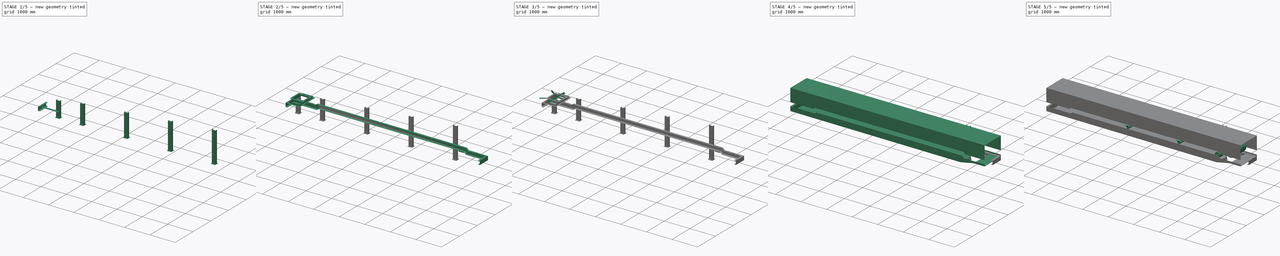
[diagram: build sequence overview — one tinted view per stage of 5, left to right]
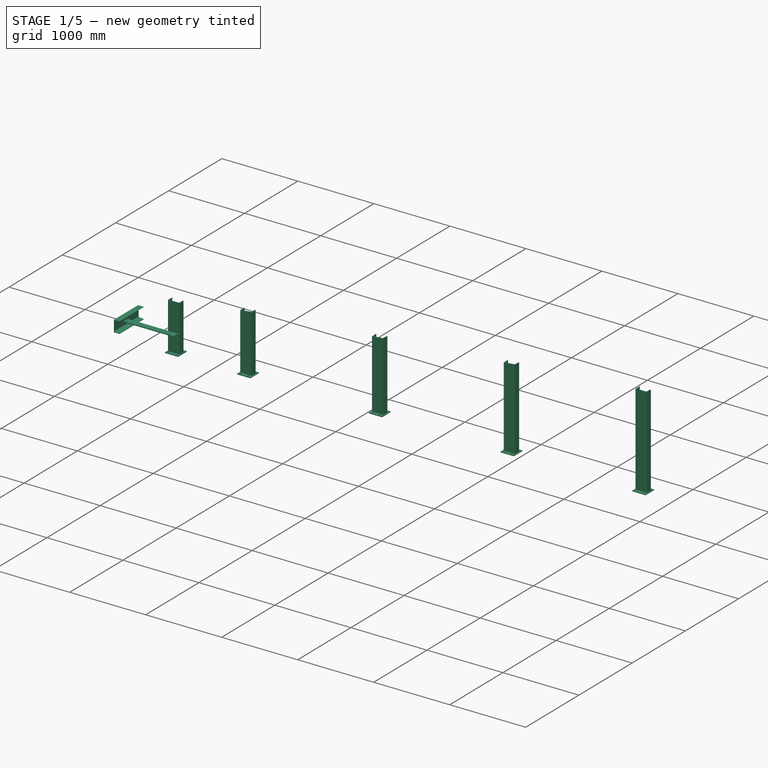
[diagram: stage 1 of 5 — iso view after this stage's code; geometry added in this stage tinted green]
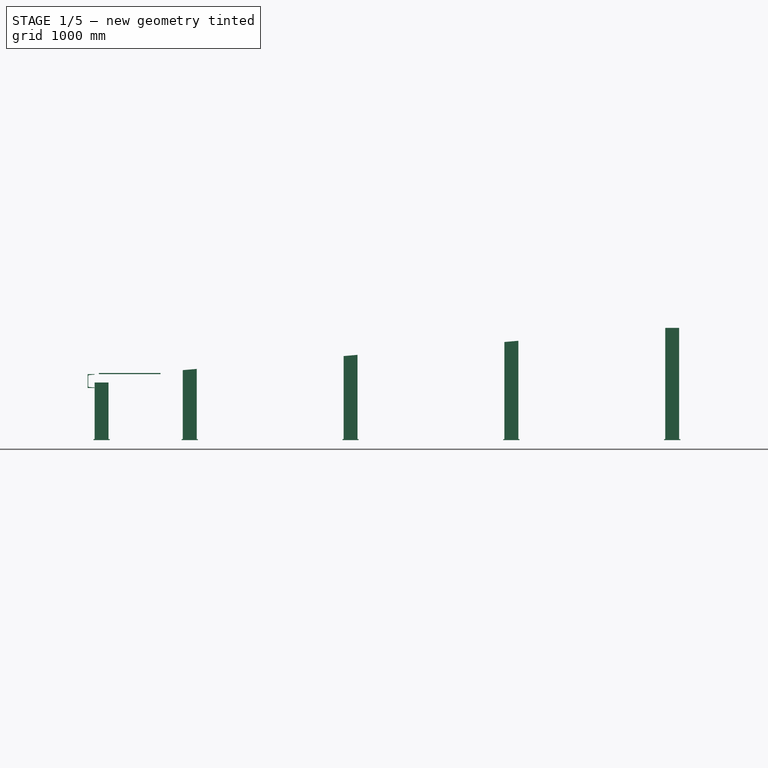
[diagram: stage 1 of 5 — front view after this stage's code; geometry added in this stage tinted green]
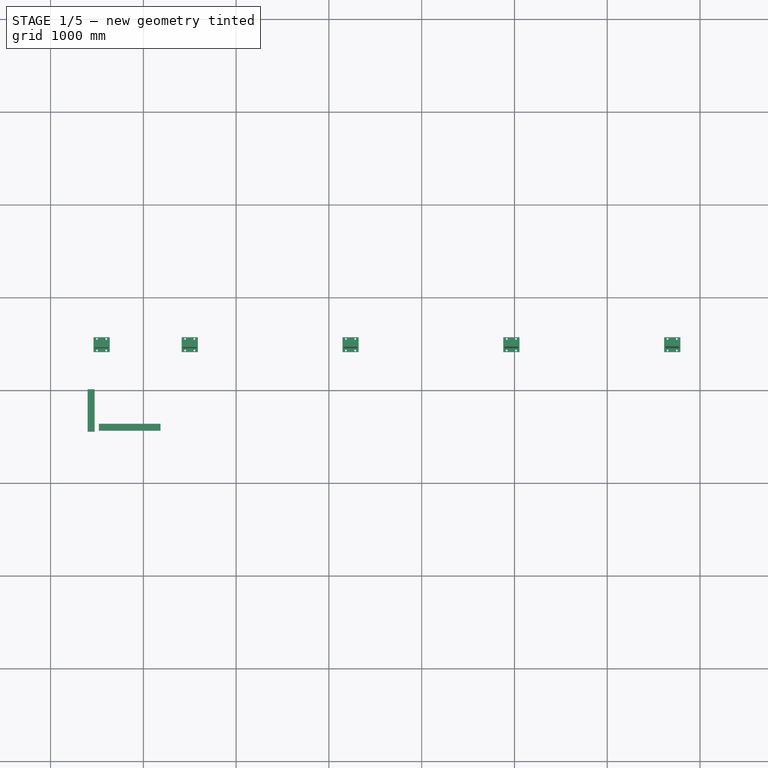
[diagram: stage 1 of 5 — top view after this stage's code; geometry added in this stage tinted green]
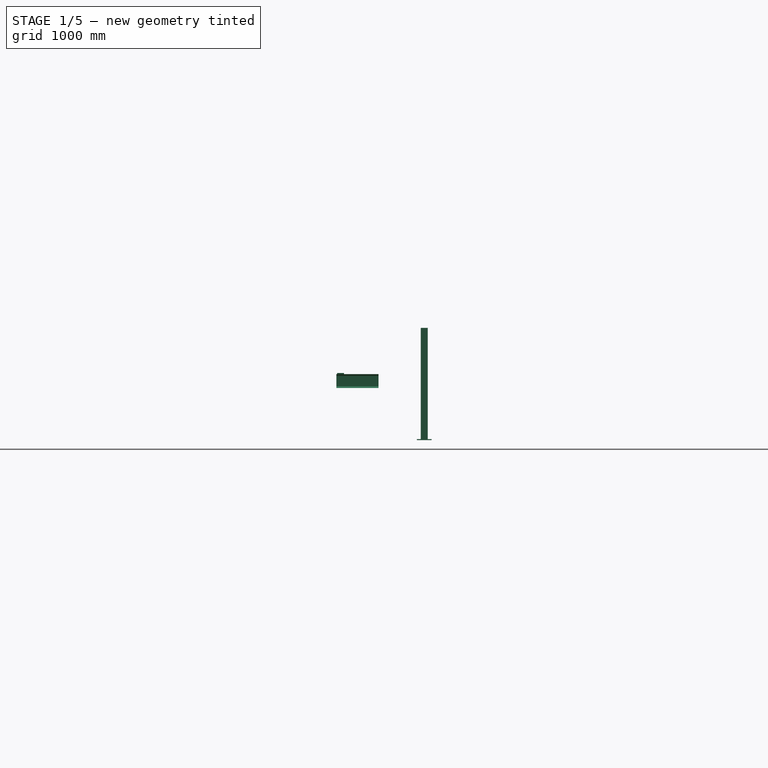
[diagram: stage 1 of 5 — right view after this stage's code; geometry added in this stage tinted green]
FCSTD DOCUMENT  (FreeCAD 1.0R39285 (Git))
Label: BeltCv600BAssy_M
License: All rights reserved
objects: Sketcher::SketchObject×40, App::Part×26, Part::FeaturePython×22, Part::Extrusion×20, Part::MultiFuse×12, PartDesign::Pad×12, Part::Feature×9, PartDesign::Body×9, Part::Cut×8, Part::Mirroring×7, Spreadsheet::Sheet×5, Part::Sweep×5, PartDesign::Pocket×5, PartDesign::LinearPattern×3, Part::Compound×2, PartDesign::Mirrored×2, PartDesign::Chamfer×1
note: 235 computed .brp shape members not serialized (recipe doc carries the construction recipe); baked Part::Feature solids carry a one-line shape summary decoded from their .brp

FEATURE [Part::FeaturePython] ChannelSteel004  # WARN: FeaturePython — macro-defined, semantics opaque (R4)
  B = 75
  H = 150
  L = 1000
  Placement = pos=(-600,0,-239) rot=(0,0,1;0rad)
  Solid = false
  g0 = 7.85
  mass = 0
  size = 3
  standard = SS
  t1 = 6.5
  t2 = 10
FEATURE [Part::Extrusion] Extrude036
  Base = -> ChannelSteel004
  Dir = (0,1,0)
  DirMode = 2
  FaceMakerClass = Part::FaceMakerBullseye
  FaceMakerMode = 3
  LengthFwd = 455
  LengthRev = 0
  Reversed = true
  Solid = false
  Symmetric = false
  expr: LengthFwd = Spreadsheet001.W0 / 2
FEATURE [Part::Extrusion] Extrude038
  Base = -> Sketch057
  Dir = (0,0,1)
  DirMode = 2
  FaceMakerClass = Part::FaceMakerBullseye
  FaceMakerMode = 3
  LengthFwd = 12
  LengthRev = 0
  Solid = true
  Symmetric = false
FEATURE [App::Part] Part028  label="Frame"
  Group = -> [Part026,Mirror007,Sketch007]
  Origin = -> Origin037
  Placement = pos=(0,0,200) rot=(0,0,1;0rad)
  expr: .Placement.Base.z = 1000 - Spreadsheet001.Ht
FEATURE [App::Part] Part017  label="body"
  Group = -> [Part015,Part014,Part013,Part011,Part010,Part025,Part028]
  Origin = -> Origin021
  Placement = pos=(0,0,-200) rot=(0,1,0;-0.087266rad)
  expr: .Placement.Base.z = Spreadsheet001.Ht - 1000
  expr: .Placement.Rotation.Angle = -Spreadsheet001.k
FEATURE [Part::FeaturePython] BasePlate004  # WARN: FeaturePython — macro-defined, semantics opaque (R4)
  B = 175
  D = 19
  H = 160
  b1 = 25
  h1 = 30
  sface = 0
FEATURE [Part::Extrusion] Extrude039
  Base = -> BasePlate004
  Dir = (0,0,1)
  DirMode = 2
  FaceMakerClass = Part::FaceMakerBullseye
  FaceMakerMode = 3
  LengthFwd = 10
  LengthRev = 0
  Solid = true
  Symmetric = false
FEATURE [Part::FeaturePython] Channel004  # WARN: FeaturePython — macro-defined, semantics opaque (R4)
  B = 75
  H = 150
  L = 620.63
  Solid = true
  g0 = 7.85
  mass = 10.4917
  size = 3
  standard = SS
  expr: L = str(Spreadsheet001.Ht - 140 - 450 * tan(Spreadsheet001.k))
FEATURE [Part::MultiFuse] Fusion019  label="PostC004"
  Placement = pos=(-450,-542.5,-800) rot=(0,0,-1;1.5708rad)
  Shapes = -> [Extrude039,Channel004]
  expr: .Placement.Base.z = -Spreadsheet001.Ht
FEATURE [Part::FeaturePython] BasePlate005  # WARN: FeaturePython — macro-defined, semantics opaque (R4)
  B = 175
  D = 19
  H = 160
  b1 = 25
  h1 = 30
  sface = 0
FEATURE [Part::FeaturePython] Channel005  # WARN: FeaturePython — macro-defined, semantics opaque (R4)
  B = 75
  H = 150
  L = 1208.69
  Solid = true
  g0 = 7.85
  mass = 20.4327
  size = 3
  standard = SS
  expr: L = str(Spreadsheet001.Ht - 90 + (Spreadsheet001.C0 - 1300 + 500) * tan(Spreadsheet001.k))
FEATURE [Part::Extrusion] Extrude040
  Base = -> BasePlate005
  Dir = (0,0,1)
  DirMode = 2
  FaceMakerClass = Part::FaceMakerBullseye
  FaceMakerMode = 3
  LengthFwd = 10
  LengthRev = 0
  Solid = true
  Symmetric = false
FEATURE [Part::MultiFuse] Fusion020  label="PostC005"
  Placement = pos=(500,-542.5,-800) rot=(0,0,-1;1.5708rad)
  Shapes = -> [Extrude040,Channel005]
  expr: .Placement.Base.z = -Spreadsheet001.Ht
FEATURE [Part::FeaturePython] BasePlate006  # WARN: FeaturePython — macro-defined, semantics opaque (R4)
  B = 175
  D = 19
  H = 160
  b1 = 25
  h1 = 30
  sface = 0
FEATURE [Part::FeaturePython] Channel006  # WARN: FeaturePython — macro-defined, semantics opaque (R4)
  B = 75
  H = 150
  L = 1251.18
  Solid = true
  g0 = 7.85
  mass = 21.151
  size = 3
  standard = SS
  expr: L = str(Spreadsheet001.Ht - 100 + (Spreadsheet001.C0 - 200) * tan(Spreadsheet001.k))
FEATURE [Part::Extrusion] Extrude041
  Base = -> BasePlate006
  Dir = (0,0,1)
  DirMode = 2
  FaceMakerClass = Part::FaceMakerBullseye
  FaceMakerMode = 3
  LengthFwd = 10
  LengthRev = 0
  Solid = true
  Symmetric = false
FEATURE [Part::MultiFuse] Fusion021  label="ヘッド部001"
  Placement = pos=(5700,-542.5,-800) rot=(0,0,-1;1.5708rad)
  Shapes = -> [Extrude041,Channel006]
  expr: .Placement.Base.x = Spreadsheet001.C0 - 800
  expr: .Placement.Base.z = -Spreadsheet001.Ht
FEATURE [Sketcher::SketchObject] Sketch059
  ArcFitTolerance = 0
  FullyConstrained = true
  MakeInternals = false
  Placement = pos=(0,0,0) rot=(1,0,0;1.5708rad)
  expr: Constraints[11] = -90 + 500 * tan(Spreadsheet001.k)
  expr: Constraints[8] = 180 - Spreadsheet001.k
  expr: Constraints[9] = Spreadsheet001.C0 - 1000
  sketch-geometry (4):
    g0: LineSegment StartX=425 StartY=-46.2557 StartZ=0 EndX=5925 EndY=434.932 EndZ=0
    g1: LineSegment StartX=5925 StartY=434.932 StartZ=0 EndX=5925 EndY=1434.93 EndZ=0
    g2: LineSegment StartX=5925 StartY=1434.93 StartZ=0 EndX=425 EndY=1434.93 EndZ=0
    g3: LineSegment StartX=425 StartY=1434.93 StartZ=0 EndX=425 EndY=-46.2557 EndZ=0
  constraints (12):
    c: Coincident(g0,g1)
    c: Vertical(g1)
    c: Coincident(g1,g2)
    c: Horizontal(g2)
    c: Coincident(g2,g3)
    c: Coincident(g3,g0)
    c: Vertical(g3)
    c: DistanceX(g-1,g0) = 425
    c: Angle(g0,g-1) = 3.05433
    c: DistanceX(g2,g2) = 5500
    c: DistanceY(g1,g1) = 1000
    c: DistanceY(g-1,g0) = -46.2557
FEATURE [Part::Extrusion] Extrude042
  Base = -> Sketch059
  Dir = (0,-1,2e-16)
  DirMode = 2
  FaceMakerClass = Part::FaceMakerBullseye
  FaceMakerMode = 3
  LengthFwd = 600
  LengthRev = 0
  Solid = true
  Symmetric = false
FEATURE [Part::FeaturePython] Array005  label="Array"  # Draft array (typed FeaturePython)
  Angle = 360
  ArrayType = 0
  Axis = (0,0,1)
  Base = -> Fusion020
  Center = (0,0,0)
  Count = 3
  Fuse = true
  IntervalAxis = (0,0,0)
  IntervalX = (1733.33,0,0)
  IntervalY = (0,100,0)
  IntervalZ = (0,0,100)
  NumberCircles = 3
  NumberPolar = 5
  NumberX = 3
  NumberY = 1
  NumberZ = 1
  RadialDistance = 50
  Symmetry = 1
  TangentialDistance = 25
  expr: .IntervalX.x = Spreadsheet001.post_x
  expr: NumberX = Spreadsheet001.post_c + 1
FEATURE [Part::MultiFuse] Fusion022  label="Fusion013"
  Placement = pos=(1733.33,0,0) rot=(0,0,1;0rad)
  Refine = true
  Shapes = -> [Array005,Fusion020]
  expr: .Placement.Base.x = Spreadsheet001.post_x
FEATURE [Part::Cut] Cut007
  Base = -> Fusion022
  Refine = true
  Tool = -> Extrude042
FEATURE [Part::Cut] Cut008
  Base = -> Fusion022
  Refine = true
  Tool = -> Extrude042
FEATURE [Part::Cut] Cut009
  Base = -> Fusion020
  Refine = true
  Tool = -> Extrude042
FEATURE [App::Part] Part029  label="post"
  Group = -> [BasePlate004,Channel004,Extrude039,Fusion019,BasePlate006,Channel006,Extrude041,Fusion021,BasePlate005,Channel005,Array005,Cut007,Fusion020,Fusion022,Cut008,Sketch059,Extrude040,Extrude042,Cut009]
  Origin = -> Origin038
  Placement = pos=(0,50,0) rot=(0,1,0;0rad)
FEATURE [Part::Mirroring] Mirror008  label="post (mirrored)"
  Base = (-1000,0,0)
  Normal = (0,-1,0)
  Source = -> Part029
FEATURE [App::Part] Part030  label="Post"
  Group = -> [Part029,Mirror008]
  Origin = -> Origin039
  Placement = pos=(0,0,-200) rot=(0,0,1;0rad)
  expr: .Placement.Base.z = Spreadsheet001.Ht - 1000
FEATURE [App::Part] Part003  label="600B_motorpulley"
  Group = -> [Spreadsheet001,Part017,Part030]
  Origin = -> Origin007
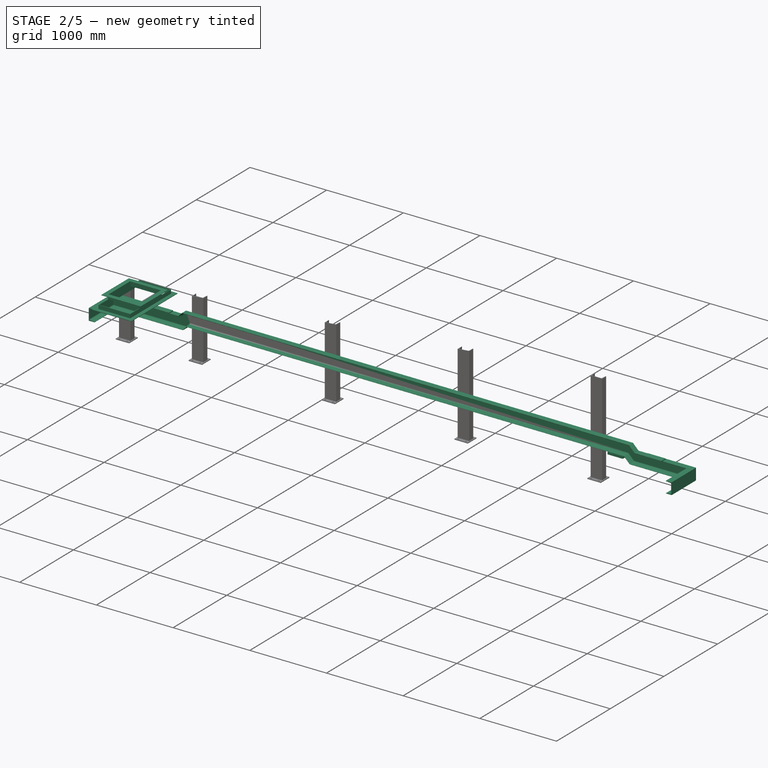
[diagram: stage 2 of 5 — iso view after this stage's code; geometry added in this stage tinted green]
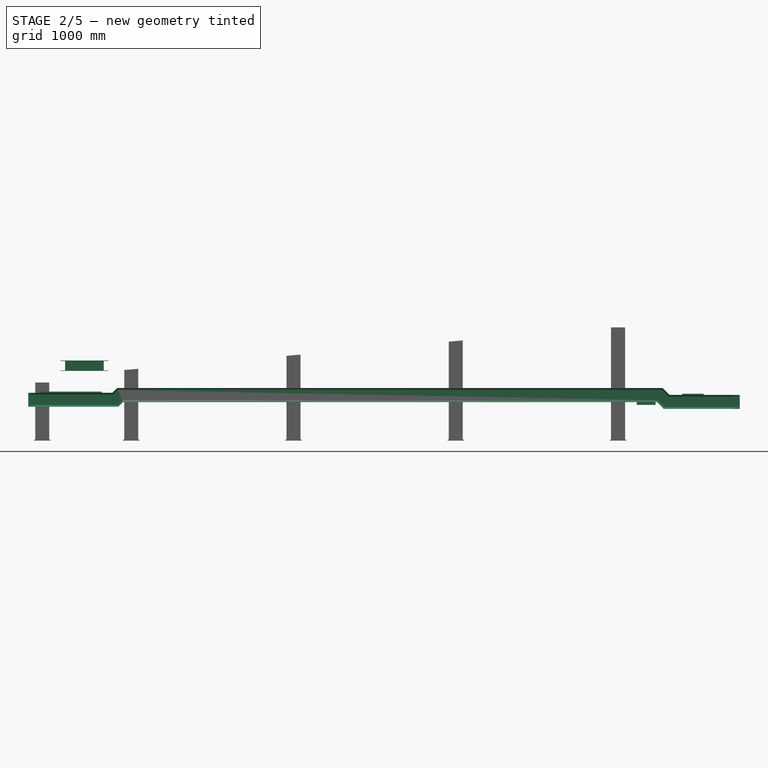
[diagram: stage 2 of 5 — front view after this stage's code; geometry added in this stage tinted green]
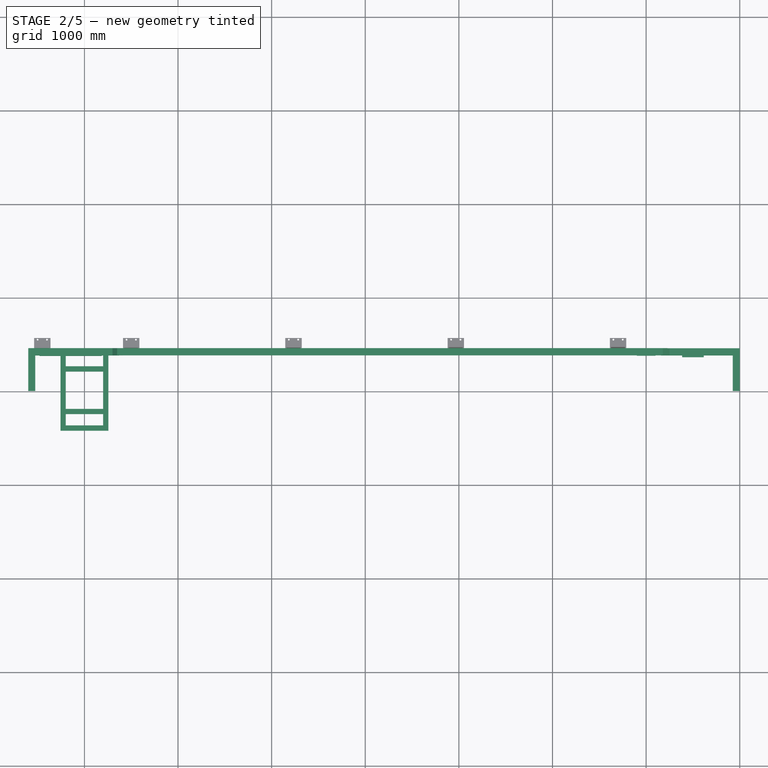
[diagram: stage 2 of 5 — top view after this stage's code; geometry added in this stage tinted green]
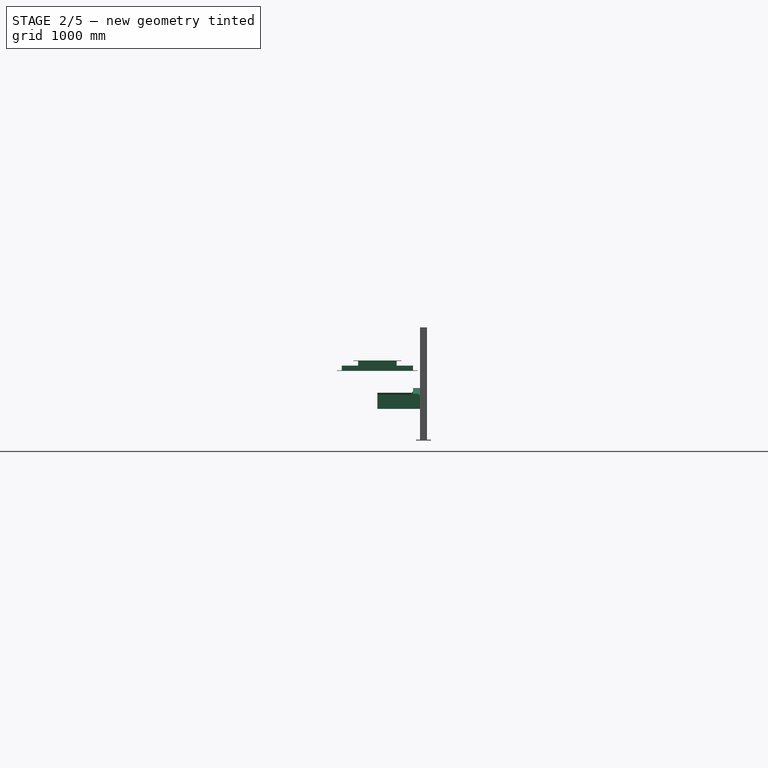
[diagram: stage 2 of 5 — right view after this stage's code; geometry added in this stage tinted green]
FEATURE [App::Part] Part024  label="suport"
  Group = -> [Clone,Body008,Compound,Clone002,Sketch050,AngleSteel001,Extrude033,Cut005]
  Origin = -> Origin033
  Placement = pos=(186.937,0,46.3537) rot=(0,0,1;0rad)
  expr: .Placement.Base.x = 215 * cos(Spreadsheet004.angle) - 27
  expr: .Placement.Base.z = 25 + 215 * sin(Spreadsheet004.angle)
FEATURE [Spreadsheet::Sheet] Spreadsheet004
  cells = A1='angle; B1(angle)=5.7
FEATURE [App::Part] Part025  label="scraper"
  Group = -> [Part020,Part021,Mirror,Part022,Fusion014,Part023,Part024,Spreadsheet004]
  Origin = -> Origin034
  Placement = pos=(656.4,0,-130.3) rot=(0,0,1;0rad)
FEATURE [Part::Feature] Self_Aligning_Carrier_600
  Placement = pos=(5500,-1.6014e-12,-36) rot=(0,0,1;1.5708rad)
  shape: bbox 308 x 890 x 416.2 mm, 193 faces, 4 solids (baked)
  expr: .Placement.Base.x = Spreadsheet001.C0 - 1000
FEATURE [App::Part] Part010  label="Pulleys"
  Group = -> [Array001,Array,Part006,Part004,CPM2_4145,Self_Aligning_Return_600,Self_Aligning_Carrier_600]
  Origin = -> Origin015
FEATURE [Sketcher::SketchObject] Sketch
  ArcFitTolerance = 1e-06
  AttachmentSupport = -> [XZ_Plane]
  FullyConstrained = true
  MakeInternals = false
  MapMode = 5
  Placement = pos=(0,0,0) rot=(1,0,0;1.5708rad)
  expr: Constraints[11] = Spreadsheet.h0 + 10
  expr: Constraints[8] = Spreadsheet.w0
  expr: Constraints[9] = Spreadsheet.sita0
  sketch-geometry (5):
    g0: LineSegment StartX=-200 StartY=0 StartZ=0 EndX=200 EndY=0 EndZ=0
    g1: LineSegment StartX=200 StartY=0 StartZ=0 EndX=200 EndY=60 EndZ=0
    g2: LineSegment StartX=200 StartY=60 StartZ=0 EndX=-200 EndY=60 EndZ=0
    g3: LineSegment StartX=-200 StartY=60 StartZ=0 EndX=-200 EndY=0 EndZ=0
    g4: GeomPoint X=-1.15e-14 Y=60 Z=0
  constraints (12):
    c: PointOnObject(g0,g-1)
    c: Coincident(g0,g1)
    c: Vertical(g1)
    c: Coincident(g1,g2)
    c: Coincident(g2,g3)
    c: Coincident(g3,g0)
    c: Vertical(g3)
    c: Symmetric(g0,g0,g-2)
    c: DistanceX(g0,g0) = 400
    c: Angle(g0,g2) = 0
    c: Symmetric(g2,g2,g4)
    c: DistanceY(g-1,g4) = 60
FEATURE [PartDesign::Pad] Pad
  Direction = (0,-1,2e-16)
  Length = 400
  Length2 = 10
  Midplane = true
  Placement = pos=(0,0,0) rot=(1,0,0;1.5708rad)
  Profile = -> Sketch
  ReferenceAxis = -> Sketch [N_Axis]
  Refine = true
  Suppressed = false
  Type = 0
  expr: Length = Spreadsheet.l0
FEATURE [PartDesign::Body] Body
  AllowCompound = false
  Group = -> [Sketch,Pad]
  Origin = -> Origin
  Tip = -> Pad
FEATURE [Sketcher::SketchObject] Sketch052
  ArcFitTolerance = 1e-06
  AttachmentSupport = -> [XZ_Plane001]
  FullyConstrained = true
  MakeInternals = false
  MapMode = 5
  Placement = pos=(0,0,0) rot=(1,0,0;1.5708rad)
  expr: .Constraints.sita = Spreadsheet.sita0
  expr: Constraints[11] = Spreadsheet.h0
  expr: Constraints[8] = Spreadsheet.w0 + Spreadsheet.t0 * 2
  sketch-geometry (5):
    g0: LineSegment StartX=-206 StartY=0 StartZ=0 EndX=206 EndY=0 EndZ=0
    g1: LineSegment StartX=206 StartY=0 StartZ=0 EndX=206 EndY=50 EndZ=0
    g2: LineSegment StartX=206 StartY=50 StartZ=0 EndX=-206 EndY=50 EndZ=0
    g3: LineSegment StartX=-206 StartY=50 StartZ=0 EndX=-206 EndY=0 EndZ=0
    g4: GeomPoint X=-6.2e-15 Y=50 Z=0
  constraints (12):
    c: PointOnObject(g0,g-1)
    c: Coincident(g0,g1)
    c: Vertical(g1)
    c: Coincident(g1,g2)
    c: Coincident(g2,g3)
    c: Coincident(g3,g0)
    c: Vertical(g3)
    c: Symmetric(g0,g0,g-2)
    c: DistanceX(g0,g0) = 412
    c: Angle(g0,g2) = 0  'sita'
    c: Symmetric(g2,g2,g4)
    c: DistanceY(g-1,g4) = 50
FEATURE [PartDesign::Pad] Pad001
  Direction = (0,-1,2e-16)
  Length = 412
  Length2 = 10
  Midplane = true
  Placement = pos=(0,0,0) rot=(1,0,0;1.5708rad)
  Profile = -> Sketch052
  ReferenceAxis = -> Sketch052 [N_Axis]
  Refine = true
  Suppressed = false
  Type = 0
  expr: Length = Spreadsheet.l0 + Spreadsheet.t0 * 2
FEATURE [Sketcher::SketchObject] Sketch053
  ArcFitTolerance = 1e-06
  AttachmentSupport = -> [Pad001]
  FullyConstrained = true
  MakeInternals = false
  MapMode = 5
  Placement = pos=(0,2.2e-14,50) rot=(0,0,1;3.14159rad)
  expr: .AttachmentOffset.Base.x = -<<shtInlet>>.h0 * sin(<<shtInlet>>.sita0) * cos(<<shtInlet>>.sita0)
  expr: Constraints[10] = Spreadsheet.w0 + Spreadsheet.t0 * 2 + Spreadsheet.b0 * 2
  expr: Constraints[11] = Spreadsheet.l0 + Spreadsheet.t0 * 2 + Spreadsheet.b0 * 2
  sketch-geometry (5):
    g0: LineSegment StartX=-256 StartY=-256 StartZ=0 EndX=256 EndY=-256 EndZ=0
    g1: LineSegment StartX=256 StartY=-256 StartZ=0 EndX=256 EndY=256 EndZ=0
    g2: LineSegment StartX=256 StartY=256 StartZ=0 EndX=-256 EndY=256 EndZ=0
    g3: LineSegment StartX=-256 StartY=256 StartZ=0 EndX=-256 EndY=-256 EndZ=0
    g4: GeomPoint [constr] X=-1.2e-15 Y=1.2e-15 Z=0
  constraints (12):
    c: Coincident(g0,g1)
    c: Coincident(g1,g2)
    c: Coincident(g2,g3)
    c: Coincident(g3,g0)
    c: Horizontal(g0)
    c: Horizontal(g2)
    c: Vertical(g1)
    c: Vertical(g3)
    c: Symmetric(g2,g0,g4)
    c: Coincident(g4,g-1)
    c: DistanceX(g2,g2) = 512
    c: DistanceY(g3,g3) = 512
FEATURE [PartDesign::Pad] Pad002
  BaseFeature = -> Pad001
  Direction = (0,0,1)
  Length = 6
  Length2 = 10
  Placement = pos=(0,0,0) rot=(1,0,0;1.5708rad)
  Profile = -> Sketch053
  ReferenceAxis = -> Sketch053 [N_Axis]
  Refine = true
  Suppressed = false
  Type = 0
FEATURE [PartDesign::Body] Body001
  AllowCompound = false
  Group = -> [Sketch052,Pad001,Sketch053,Pad002]
  Origin = -> Origin001
  Tip = -> Pad002
FEATURE [Part::Cut] Cut006
  Base = -> Body001
  Refine = true
  Tool = -> Body
FEATURE [Spreadsheet::Sheet] Spreadsheet  label="shtInlet"
  cells = A1='inlet; A2='w0; B2(w0)=400; A3='l0; B3(l0)=400; A4='t0; B4(t0)=6; A5='h0; B5(h0)=50; A6='b0; B6(b0)=50; A7='sita0; B7(sita0)=0
FEATURE [App::Part] Part  label="inlet"
  Group = -> [Spreadsheet,Body,Body001,Cut006]
  Origin = -> Origin002
  Placement = pos=(400,0,413.1) rot=(0,0,1;0rad)
FEATURE [App::Part] Part013  label="Cover"
  Group = -> [Sketch020,Sketch033,Extrude032,Extrude012,Cut003,Part]
  Origin = -> Origin018
FEATURE [Sketcher::SketchObject] Sketch054
  ArcFitTolerance = 1e-06
  AttachmentSupport = -> [XZ_Plane003]
  FullyConstrained = true
  MakeInternals = false
  MapMode = 5
  Placement = pos=(0,0,0) rot=(1,0,0;1.5708rad)
  expr: Constraints[11] = Spreadsheet005.h0 + 10
  expr: Constraints[8] = Spreadsheet005.w0
  expr: Constraints[9] = Spreadsheet005.sita0
  sketch-geometry (5):
    g0: LineSegment StartX=-200 StartY=0 StartZ=0 EndX=200 EndY=0 EndZ=0
    g1: LineSegment StartX=200 StartY=0 StartZ=0 EndX=200 EndY=60 EndZ=0
    g2: LineSegment StartX=200 StartY=60 StartZ=0 EndX=-200 EndY=60 EndZ=0
    g3: LineSegment StartX=-200 StartY=60 StartZ=0 EndX=-200 EndY=0 EndZ=0
    g4: GeomPoint X=6.5e-15 Y=60 Z=0
  constraints (12):
    c: PointOnObject(g0,g-1)
    c: Coincident(g0,g1)
    c: Vertical(g1)
    c: Coincident(g1,g2)
    c: Coincident(g2,g3)
    c: Coincident(g3,g0)
    c: Vertical(g3)
    c: Symmetric(g0,g0,g-2)
    c: DistanceX(g0,g0) = 400
    c: Angle(g0,g2) = 0
    c: Symmetric(g2,g2,g4)
    c: DistanceY(g-1,g4) = 60
FEATURE [PartDesign::Pad] Pad003
  Direction = (0,-1,2e-16)
  Length = 750
  Length2 = 10
  Midplane = true
  Placement = pos=(0,0,0) rot=(1,0,0;1.5708rad)
  Profile = -> Sketch054
  ReferenceAxis = -> Sketch054 [N_Axis]
  Refine = true
  Suppressed = false
  Type = 0
  expr: Length = Spreadsheet005.l0
FEATURE [PartDesign::Body] Body002
  AllowCompound = false
  Group = -> [Sketch054,Pad003]
  Origin = -> Origin003
  Tip = -> Pad003
FEATURE [Sketcher::SketchObject] Sketch004
  ArcFitTolerance = 1e-06
  AttachmentSupport = -> [XZ_Plane004]
  FullyConstrained = true
  MakeInternals = false
  MapMode = 5
  Placement = pos=(0,0,0) rot=(1,0,0;1.5708rad)
  expr: .Constraints.sita = Spreadsheet005.sita0
  expr: Constraints[11] = Spreadsheet005.h0
  expr: Constraints[8] = Spreadsheet005.w0 + Spreadsheet005.t0 * 2
  sketch-geometry (5):
    g0: LineSegment StartX=-206 StartY=0 StartZ=0 EndX=206 EndY=0 EndZ=0
    g1: LineSegment StartX=206 StartY=0 StartZ=0 EndX=206 EndY=50 EndZ=0
    g2: LineSegment StartX=206 StartY=50 StartZ=0 EndX=-206 EndY=50 EndZ=0
    g3: LineSegment StartX=-206 StartY=50 StartZ=0 EndX=-206 EndY=0 EndZ=0
    g4: GeomPoint X=-6.4e-15 Y=50 Z=0
  constraints (12):
    c: PointOnObject(g0,g-1)
    c: Coincident(g0,g1)
    c: Vertical(g1)
    c: Coincident(g1,g2)
    c: Coincident(g2,g3)
    c: Coincident(g3,g0)
    c: Vertical(g3)
    c: Symmetric(g0,g0,g-2)
    c: DistanceX(g0,g0) = 412
    c: Angle(g0,g2) = 0  'sita'
    c: Symmetric(g2,g2,g4)
    c: DistanceY(g-1,g4) = 50
FEATURE [PartDesign::Pad] Pad004
  Direction = (0,-1,2e-16)
  Length = 762
  Length2 = 10
  Midplane = true
  Placement = pos=(0,0,0) rot=(1,0,0;1.5708rad)
  Profile = -> Sketch004
  ReferenceAxis = -> Sketch004 [N_Axis]
  Refine = true
  Suppressed = false
  Type = 0
  expr: Length = Spreadsheet005.l0 + Spreadsheet005.t0 * 2
FEATURE [Sketcher::SketchObject] Sketch055
  ArcFitTolerance = 1e-06
  AttachmentSupport = -> [Pad004]
  FullyConstrained = true
  MakeInternals = false
  MapMode = 5
  Placement = pos=(0,2.2e-14,50) rot=(0,0,1;3.14159rad)
  expr: .AttachmentOffset.Base.x = -<<shtOutlet>>.h0 * sin(<<shtOutlet>>.sita0) * cos(<<shtOutlet>>.sita0)
  expr: Constraints[10] = (Spreadsheet005.w0 + Spreadsheet005.t0 * 2 + Spreadsheet005.b0 * 2) / cos(Spreadsheet005.sita0)
  expr: Constraints[11] = Spreadsheet005.l0 + Spreadsheet005.t0 * 2 + Spreadsheet005.b0 * 2
  sketch-geometry (5):
    g0: LineSegment StartX=-256 StartY=-431 StartZ=0 EndX=256 EndY=-431 EndZ=0
    g1: LineSegment StartX=256 StartY=-431 StartZ=0 EndX=256 EndY=431 EndZ=0
    g2: LineSegment StartX=256 StartY=431 StartZ=0 EndX=-256 EndY=431 EndZ=0
    g3: LineSegment StartX=-256 StartY=431 StartZ=0 EndX=-256 EndY=-431 EndZ=0
    g4: GeomPoint [constr] X=-9e-16 Y=-8.3e-15 Z=0
  constraints (12):
    c: Coincident(g0,g1)
    c: Coincident(g1,g2)
    c: Coincident(g2,g3)
    c: Coincident(g3,g0)
    c: Horizontal(g0)
    c: Horizontal(g2)
    c: Vertical(g1)
    c: Vertical(g3)
    c: Symmetric(g2,g0,g4)
    c: Coincident(g4,g-1)
    c: DistanceX(g2,g2) = 512
    c: DistanceY(g3,g3) = 862
FEATURE [PartDesign::Pad] Pad005
  BaseFeature = -> Pad004
  Direction = (0,0,1)
  Length = 6
  Length2 = 10
  Placement = pos=(0,0,0) rot=(1,0,0;1.5708rad)
  Profile = -> Sketch055
  ReferenceAxis = -> Sketch055 [N_Axis]
  Refine = true
  Suppressed = false
  Type = 0
FEATURE [PartDesign::Body] Body003
  AllowCompound = false
  Group = -> [Sketch004,Pad004,Sketch055,Pad005]
  Origin = -> Origin004
  Tip = -> Pad005
FEATURE [Part::Cut] Cut001
  Base = -> Body003
  Placement = pos=(0,0,0) rot=(0,1,0;3.14159rad)
  Refine = true
  Tool = -> Body002
FEATURE [Spreadsheet::Sheet] Spreadsheet005  label="shtOutlet"
  cells = A1='outlet; A2='w0; B2(w0)=400; A3='l0; B3(l0)=750; A4='t0; B4(t0)=6; A5='h0; B5(h0)=50; A6='b0; B6(b0)=50; A7='sita0; B7(sita0)=0
FEATURE [App::Part] Part001  label="outlet"
  Group = -> [Spreadsheet005,Body002,Body003,Cut001]
  Origin = -> Origin005
  Placement = pos=(6790,0,-337.3) rot=(0,0,1;0rad)
  expr: .Placement.Base.x = Spreadsheet001.C0 + 290
FEATURE [App::Part] Part014  label="waterReceptacle"
  Group = -> [Single_flange_straight_pipe,Fusion009,Single_flange_straight_pipe001,Sketch023,Sketch032,Extrude031,Extrude015,Cut,Part001]
  Origin = -> Origin019
FEATURE [Sketcher::SketchObject] Sketch007
  ArcFitTolerance = 0
  FullyConstrained = true
  MakeInternals = false
  MapMode = 5
  Placement = pos=(0,0,14) rot=(1,0,0;1.5708rad)
  expr: Constraints[11] = Spreadsheet001.C0 + 1200
  expr: Constraints[14] = Spreadsheet001.h1
  expr: Constraints[15] = Spreadsheet001.h2
  sketch-geometry (5):
    g0: LineSegment StartX=-600 StartY=-99 StartZ=0 EndX=250 EndY=-99 EndZ=0
    g1: LineSegment StartX=250 StartY=-99 StartZ=0 EndX=300 EndY=-49 EndZ=0
    g2: LineSegment StartX=300 StartY=-49 StartZ=0 EndX=6427 EndY=-49 EndZ=0
    g3: LineSegment StartX=6427 StartY=-49 StartZ=0 EndX=6500 EndY=-122 EndZ=0
    g4: LineSegment StartX=6500 StartY=-122 StartZ=0 EndX=7700 EndY=-122 EndZ=0
  constraints (16):
    c: Horizontal(g0)
    c: Coincident(g0,g1)
    c: Coincident(g1,g2)
    c: Horizontal(g2)
    c: Coincident(g2,g3)
    c: Coincident(g3,g4)
    c: Horizontal(g4)
    c: DistanceX(g0,g-1) = 600
    c: Angle(g1,g0) = 2.35619
    c: DistanceX(g-1,g0) = 250
    c: Angle(g4,g3) = 2.35619
    c: DistanceX(g-1,g4) = 7700
    c: DistanceX(g4,g4) = 1200
    c: DistanceY(g0,g-1) = 99
    c: DistanceY(g0,g1) = 50
    c: DistanceY(g3,g3) = 73
FEATURE [Part::Feature] ChannelSteel003
  Placement = pos=(-600,-2.2e-14,-239) rot=(0,0,1;0rad)
  shape: bbox 2e-07 x 75 x 150 mm, 0 faces, 0 solids (baked)
FEATURE [Sketcher::SketchObject] Sketch056
  ArcFitTolerance = 0
  FullyConstrained = true
  MakeInternals = false
  MapMode = 5
  Placement = pos=(0,0,0) rot=(1,0,0;1.5708rad)
  expr: Constraints[13] = Spreadsheet001.C0
  expr: Constraints[16] = Spreadsheet001.h1
  expr: Constraints[18] = Spreadsheet001.h2
  sketch-geometry (6):
    g0: LineSegment StartX=-600 StartY=-89 StartZ=0 EndX=300 EndY=-89 EndZ=0
    g1: LineSegment StartX=300 StartY=-89 StartZ=0 EndX=350 EndY=-39 EndZ=0
    g2: LineSegment StartX=350 StartY=-39 StartZ=0 EndX=6177 EndY=-39 EndZ=0
    g3: LineSegment StartX=6177 StartY=-39 StartZ=0 EndX=6250 EndY=-112 EndZ=0
    g4: LineSegment StartX=6250 StartY=-112 StartZ=0 EndX=7000 EndY=-112 EndZ=0
    g5: LineSegment [constr] StartX=0 StartY=0 StartZ=0 EndX=6500 EndY=0 EndZ=0
  constraints (19):
    c: Horizontal(g0)
    c: Coincident(g0,g1)
    c: Coincident(g1,g2)
    c: Horizontal(g2)
    c: Coincident(g2,g3)
    c: Coincident(g3,g4)
    c: Horizontal(g4)
    c: DistanceX(g0,g-1) = 600
    c: DistanceX(g-1,g0) = 300
    c: Angle(g1,g0) = 2.35619
    c: Angle(g4,g3) = 2.35619
    c: PointOnObject(g5,g-1)
    c: Coincident(g5,g-1)
    c: DistanceX(g5,g5) = 6500
    c: DistanceX(g5,g4) = 500
    c: DistanceX(g3,g5) = 250
    c: DistanceY(g0,g1) = 50
    c: DistanceY(g-1,g0) = -89
    c: DistanceY(g3,g3) = 73
FEATURE [Part::Sweep] Sweep005
  Frenet = false
  Placement = pos=(0,-455,0) rot=(0,0,1;0rad)
  Sections = -> [ChannelSteel003]
  Solid = true
  Spine = -> Sketch056 [Edge1,Edge2,Edge3,Edge4,Edge5]
  Transition = 1
  expr: .Placement.Base.y = -Spreadsheet001.W0 / 2
FEATURE [Sketcher::SketchObject] Sketch057
  ArcFitTolerance = 0
  AttachmentSupport = -> [Sweep005]
  FullyConstrained = true
  MakeInternals = false
  MapMode = 5
  Placement = pos=(0,-455,-89) rot=(0,0,1;0rad)
  sketch-geometry (4):
    g0: LineSegment StartX=-480 StartY=8 StartZ=0 EndX=185 EndY=8 EndZ=0
    g1: LineSegment StartX=185 StartY=8 StartZ=0 EndX=185 EndY=83 EndZ=0
    g2: LineSegment StartX=185 StartY=83 StartZ=0 EndX=-480 EndY=83 EndZ=0
    g3: LineSegment StartX=-480 StartY=83 StartZ=0 EndX=-480 EndY=8 EndZ=0
  constraints (12):
    c: Coincident(g0,g1)
    c: Coincident(g1,g2)
    c: Coincident(g2,g3)
    c: Coincident(g3,g0)
    c: Horizontal(g0)
    c: Horizontal(g2)
    c: Vertical(g1)
    c: Vertical(g3)
    c: DistanceY(g1,g1) = 75
    c: DistanceY(g-1,g0) = 8
    c: DistanceX(g-1,g0) = 185
    c: DistanceX(g0,g0) = 665
FEATURE [Sketcher::SketchObject] Sketch058
  ArcFitTolerance = 0
  AttachmentSupport = -> [Sweep005]
  FullyConstrained = false
  MakeInternals = false
  MapMode = 5
  Placement = pos=(0,-455,-112) rot=(0,0,1;0rad)
  expr: Constraints[9] = Spreadsheet001.C0
  sketch-geometry (5):
    g0: LineSegment StartX=6385 StartY=16.2326 StartZ=0 EndX=6615 EndY=16.2326 EndZ=0
    g1: LineSegment StartX=6615 StartY=16.2326 StartZ=0 EndX=6615 EndY=96.2326 EndZ=0
    g2: LineSegment StartX=6615 StartY=96.2326 StartZ=0 EndX=6385 EndY=96.2326 EndZ=0
    g3: LineSegment StartX=6385 StartY=96.2326 StartZ=0 EndX=6385 EndY=16.2326 EndZ=0
    g4: LineSegment [constr] StartX=6500 StartY=284.577 StartZ=0 EndX=6500 EndY=-153.677 EndZ=0
  constraints (13):
    c: Coincident(g0,g1)
    c: Coincident(g1,g2)
    c: Coincident(g2,g3)
    c: Coincident(g3,g0)
    c: Horizontal(g0)
    c: Horizontal(g2)
    c: Vertical(g1)
    c: Vertical(g3)
    c: Vertical(g4)
    c: DistanceX(g-2,g4) = 6500
    c: DistanceY(g1,g1) = 80
    c: DistanceX(g0,g0) = 230
    c: DistanceX(g4,g0) = 115
FEATURE [Part::Extrusion] Extrude035
  Base = -> Sketch058
  Dir = (0,0,1)
  DirMode = 2
  FaceMakerClass = Part::FaceMakerBullseye
  FaceMakerMode = 3
  LengthFwd = 12
  LengthRev = 0
  Solid = true
  Symmetric = false
FEATURE [Sketcher::SketchObject] Sketch014
  ArcFitTolerance = 0
  AttachmentSupport = -> [Sweep005]
  FullyConstrained = false
  MakeInternals = false
  MapMode = 5
  Placement = pos=(0,-455,-189) rot=(1,0,0;3.14159rad)
  expr: Constraints[13] = Spreadsheet001.C0 - 500
  sketch-geometry (5):
    g0: LineSegment StartX=5900 StartY=-9 StartZ=0 EndX=6100 EndY=-9 EndZ=0
    g1: LineSegment StartX=6100 StartY=-9 StartZ=0 EndX=6100 EndY=-79 EndZ=0
    g2: LineSegment StartX=6100 StartY=-79 StartZ=0 EndX=5900 EndY=-79 EndZ=0
    g3: LineSegment StartX=5900 StartY=-79 StartZ=0 EndX=5900 EndY=-9 EndZ=0
    g4: LineSegment [constr] StartX=6000 StartY=33.7597 StartZ=0 EndX=6000 EndY=-194.785 EndZ=0
  constraints (14):
    c: Coincident(g0,g1)
    c: Coincident(g1,g2)
    c: Coincident(g2,g3)
    c: Coincident(g3,g0)
    c: Horizontal(g0)
    c: Horizontal(g2)
    c: Vertical(g1)
    c: Vertical(g3)
    c: Vertical(g4)
    c: DistanceX(g0,g0) = 200
    c: DistanceY(g3,g3) = 70
    c: DistanceX(g4,g0) = 100
    c: DistanceY(g-1,g0) = -9
    c: DistanceX(g-1,g4) = 6000
FEATURE [Part::Extrusion] Extrude005
  Base = -> Sketch014
  Dir = (0,0,-1)
  DirMode = 2
  FaceMakerClass = Part::FaceMakerBullseye
  FaceMakerMode = 3
  LengthFwd = 30
  LengthRev = 0
  Solid = true
  Symmetric = false
FEATURE [Part::FeaturePython] ChannelSteel005  # WARN: FeaturePython — macro-defined, semantics opaque (R4)
  B = 75
  H = 150
  L = 1000
  Placement = pos=(7000,0,-112) rot=(0,1,0;3.14159rad)
  Solid = false
  g0 = 7.85
  mass = 0
  size = 3
  standard = SS
  t1 = 6.5
  t2 = 10
  expr: .Placement.Base.x = Spreadsheet001.C0 + 500
FEATURE [Part::Extrusion] Extrude037
  Base = -> ChannelSteel005
  Dir = (0,1,0)
  DirMode = 2
  FaceMakerClass = Part::FaceMakerBullseye
  FaceMakerMode = 3
  LengthFwd = 455
  LengthRev = 0
  Reversed = true
  Solid = false
  Symmetric = false
  expr: LengthFwd = Spreadsheet001.W0 / 2
FEATURE [Part::MultiFuse] Fusion016
  Refine = true
  Shapes = -> [Sweep005,Extrude036]
FEATURE [Part::MultiFuse] Fusion017
  Refine = true
  Shapes = -> [Fusion016,Extrude038]
FEATURE [Part::MultiFuse] Fusion018
  Refine = true
  Shapes = -> [Fusion017,Extrude037]
FEATURE [Part::MultiFuse] Fusion003
  Shapes = -> [Fusion018,Extrude035]
FEATURE [Part::MultiFuse] Fusion004
  Placement = pos=(0,0,-200) rot=(0,1,0;0rad)
  Refine = true
  Shapes = -> [Fusion003,Extrude005]
  expr: .Placement.Base.z = Spreadsheet001.Ht - 1000
FEATURE [App::Part] Part026  label="本体001"
  Group = -> [Fusion016,ChannelSteel005,ChannelSteel004,ChannelSteel003,Sweep005,Sketch056,Sketch057,Extrude005,Extrude036,Extrude038,Extrude037,Extrude035,Sketch058,Sketch014,Fusion018,Fusion003,Fusion017,Fusion004]
  Origin = -> Origin035
FEATURE [Part::Mirroring] Mirror007  label="本体 (mirrored)001"
  Base = (-1000,0,0)
  Normal = (0,-1,0)
  Source = -> Part026
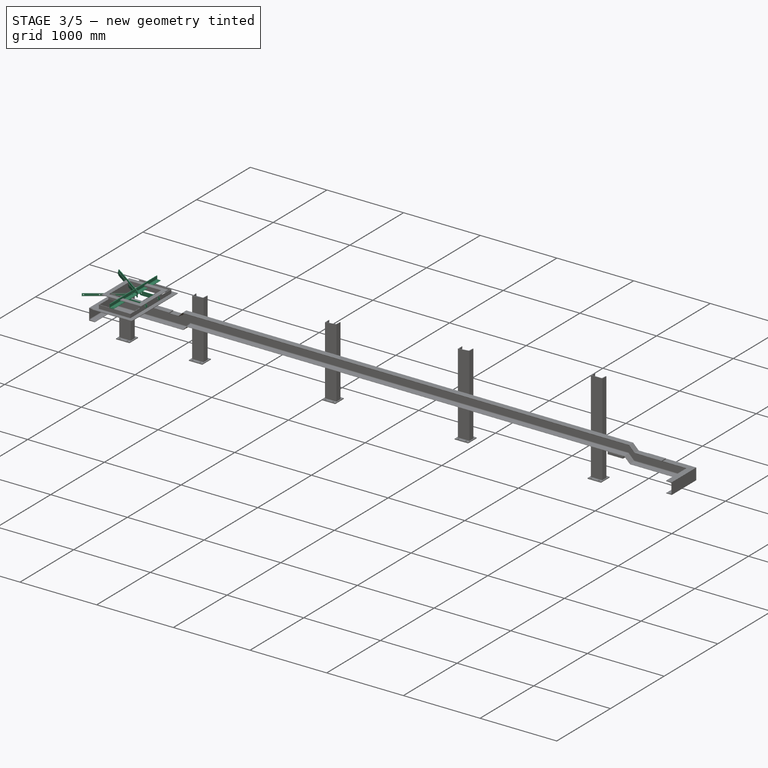
[diagram: stage 3 of 5 — iso view after this stage's code; geometry added in this stage tinted green]
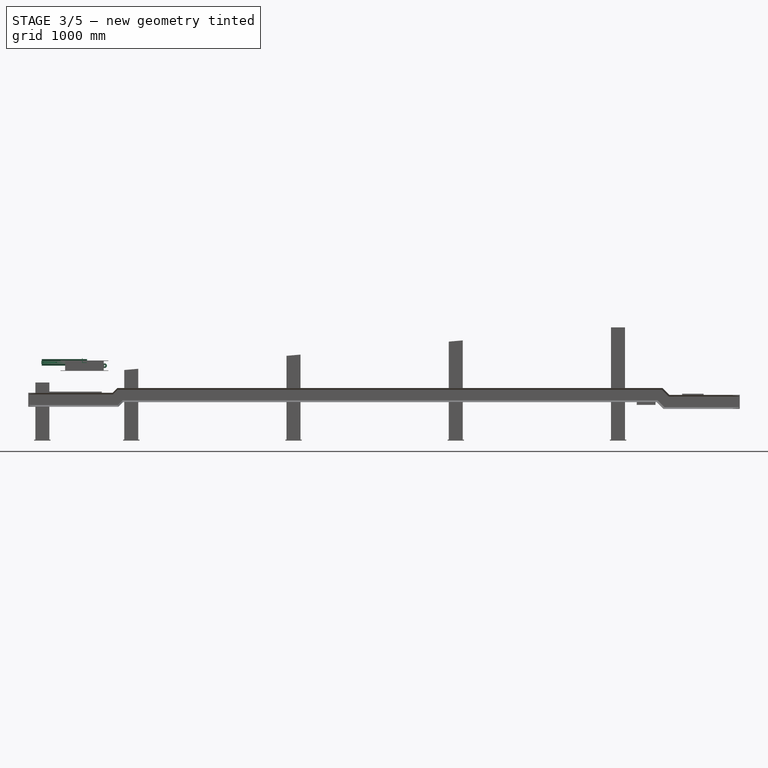
[diagram: stage 3 of 5 — front view after this stage's code; geometry added in this stage tinted green]
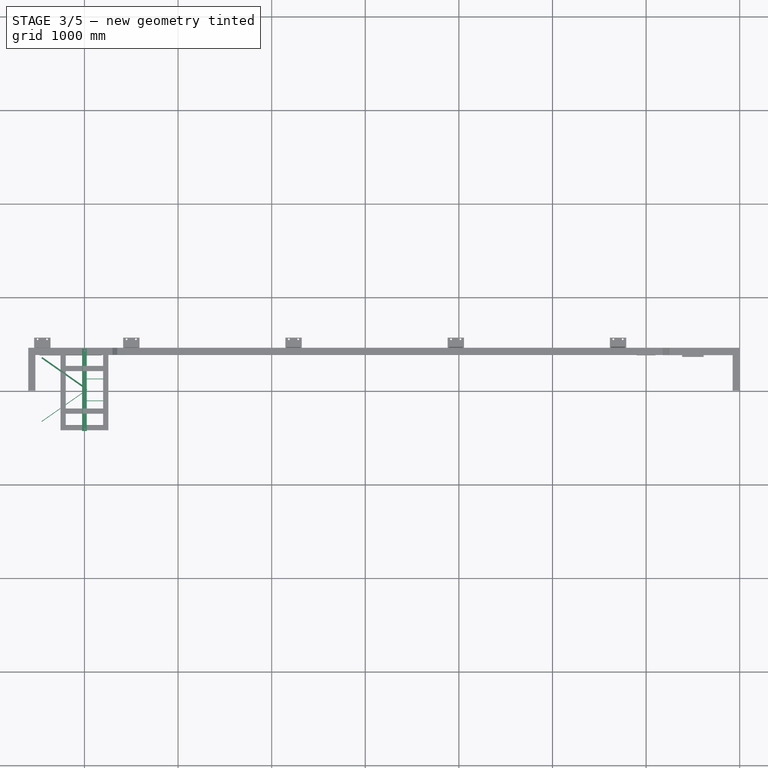
[diagram: stage 3 of 5 — top view after this stage's code; geometry added in this stage tinted green]
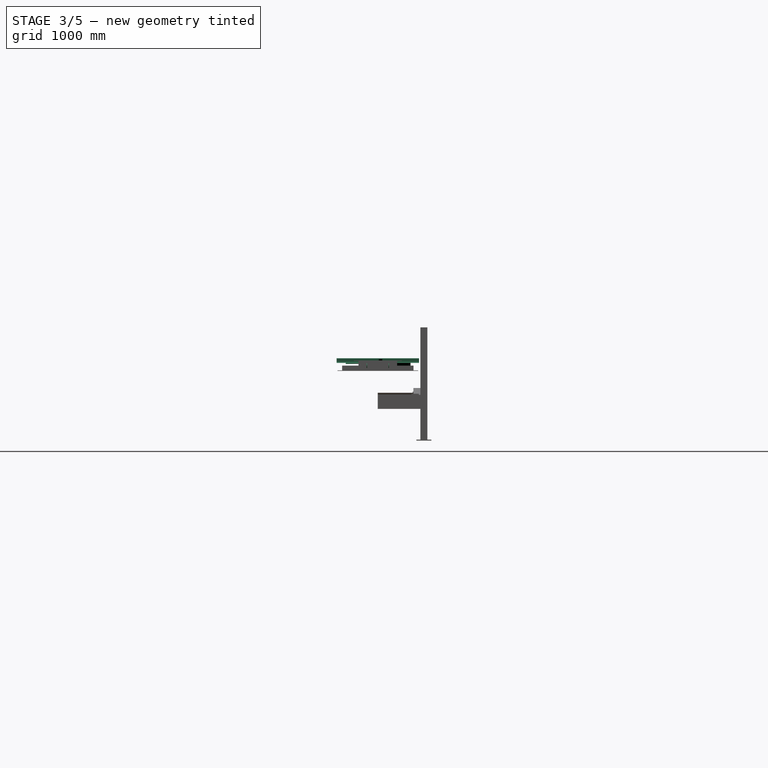
[diagram: stage 3 of 5 — right view after this stage's code; geometry added in this stage tinted green]
FEATURE [PartDesign::Body] Body004
  AllowCompound = false
  Group = -> [Sketch040,Pad006,Sketch041,Pad007,Chamfer,Sketch042,Pocket,Sketch043,Pocket001,LinearPattern,Mirrored]
  Origin = -> Origin024
  Tip = -> Mirrored
FEATURE [App::Part] Part020  label="scraperBody"
  Group = -> [Body004]
  Origin = -> Origin025
FEATURE [Sketcher::SketchObject] Sketch044
  ArcFitTolerance = 1e-06
  AttachmentSupport = -> [XY_Plane026]
  FullyConstrained = true
  MakeInternals = false
  MapMode = 5
  sketch-geometry (6):
    g0: LineSegment StartX=-451.035 StartY=350 StartZ=0 EndX=16.0601 EndY=22.9363 EndZ=0
    g1: ArcOfCircle CenterX=0 CenterY=0 CenterZ=0 NormalX=0 NormalY=0 NormalZ=1 AngleXU=0 Radius=28 StartAngle=0 EndAngle=0.959931
    g2: ArcOfCircle CenterX=0 CenterY=0 CenterZ=0 NormalX=0 NormalY=0 NormalZ=1 AngleXU=0 Radius=18 StartAngle=0 EndAngle=0.959931
    g3: LineSegment StartX=10.3244 StartY=14.7447 StartZ=0 EndX=-456.771 EndY=341.808 EndZ=0
    g4: LineSegment StartX=-456.771 StartY=341.808 StartZ=0 EndX=-451.035 EndY=350 EndZ=0
    g5: LineSegment StartX=18 StartY=0 StartZ=0 EndX=28 EndY=0 EndZ=0
  constraints (17):
    c: Tangent(g0,g1) = 1.5708
    c: Coincident(g3,g4)
    c: Coincident(g4,g0)
    c: Coincident(g2,g1)
    c: Coincident(g2,g-1)
    c: Tangent(g2,g3) = -1.5708
    c: Perpendicular(g4,g3)
    c: Parallel(g0,g3)
    c: Radius(g1) = 28
    c: Horizontal(g5)
    c: PointOnObject(g5,g-1)
    c: Coincident(g1,g5)
    c: Coincident(g2,g5)
    c: Angle(g3,g-1) = 0.610865
    c: Distance(g4,g4) = 10
    c: DistanceY(g-1,g0) = 350
    c: DistanceX(g3,g-1) = 456.771  'L'
FEATURE [PartDesign::Pad] Pad008
  Direction = (0,0,1)
  Length = 70
  Length2 = 10
  Profile = -> Sketch044
  ReferenceAxis = -> Sketch044 [N_Axis]
  Refine = true
  Suppressed = false
  Type = 0
FEATURE [Sketcher::SketchObject] Sketch006
  ArcFitTolerance = 1e-06
  FullyConstrained = false
  MakeInternals = false
  MapMode = 5
  Placement = pos=(0,126.75,0) rot=(0,0.707107,0.707107;3.14159rad)
  sketch-geometry (1):
    g0: Circle CenterX=26.7406 CenterY=25.2413 CenterZ=0 NormalX=0 NormalY=0 NormalZ=1 AngleXU=0 Radius=6
  constraints (2):
    c: Diameter(g0) = 12
    c: Distance(g0,g-3) = 25
FEATURE [PartDesign::Pocket] Pocket002
  BaseFeature = -> Pad008
  Direction = (0,-1,2e-16)
  Length = 30
  Length2 = 5
  Profile = -> Sketch006
  ReferenceAxis = -> Sketch006 [N_Axis]
  Refine = true
  Suppressed = false
  Type = 0
FEATURE [Sketcher::SketchObject] Sketch045
  ArcFitTolerance = 1e-06
  AttachmentSupport = -> [Pocket002]
  FullyConstrained = true
  MakeInternals = false
  MapMode = 5
  Placement = pos=(10.3244,14.7447,0) rot=(0.913318,-0.287968,-0.287968;1.66134rad)
  sketch-geometry (1):
    g0: Circle CenterX=-550.218 CenterY=45 CenterZ=0 NormalX=0 NormalY=0 NormalZ=1 AngleXU=0 Radius=6
  constraints (3):
    c: DistanceY(g-1,g0) = 45
    c: Diameter(g0) = 12
    c: Distance(g0,g-3) = 20
FEATURE [PartDesign::Pocket] Pocket003
  BaseFeature = -> Pocket002
  Direction = (0.573576,0.819152,3e-16)
  Length = 5
  Length2 = 5
  Profile = -> Sketch045
  ReferenceAxis = -> Sketch045 [N_Axis]
  Refine = true
  Suppressed = false
  Type = 1
FEATURE [PartDesign::Body] Body005
  AllowCompound = false
  Group = -> [Sketch044,Pad008,Sketch006,Pocket002,Sketch045,Pocket003,LinearPattern001,Mirrored001]
  Origin = -> Origin026
  Placement = pos=(0,0,-20) rot=(0,0,1;0rad)
  Tip = -> Mirrored001
FEATURE [App::Part] Part021  label="rubberSheet"
  Group = -> [Body005]
  Origin = -> Origin027
FEATURE [Sketcher::SketchObject] Sketch046
  ArcFitTolerance = 1e-06
  AttachmentSupport = -> [XY_Plane029]
  FullyConstrained = true
  MakeInternals = false
  MapMode = 5
  sketch-geometry (4):
    g0: LineSegment StartX=0 StartY=0 StartZ=0 EndX=550 EndY=0 EndZ=0
    g1: LineSegment StartX=550 StartY=0 StartZ=0 EndX=550 EndY=6 EndZ=0
    g2: LineSegment StartX=550 StartY=6 StartZ=0 EndX=0 EndY=6 EndZ=0
    g3: LineSegment StartX=0 StartY=6 StartZ=0 EndX=0 EndY=0 EndZ=0
  constraints (11):
    c: Coincident(g0,g1)
    c: Coincident(g1,g2)
    c: Coincident(g2,g3)
    c: Coincident(g3,g0)
    c: Horizontal(g0)
    c: Horizontal(g2)
    c: Vertical(g1)
    c: Vertical(g3)
    c: DistanceX(g2,g2) = 550
    c: DistanceY(g3,g3) = 6
    c: Coincident(g0,g-1)
FEATURE [PartDesign::Pad] Pad009
  Direction = (0,0,1)
  Length = 32
  Length2 = 10
  Profile = -> Sketch046
  ReferenceAxis = -> Sketch046 [N_Axis]
  Refine = true
  Suppressed = false
  Type = 0
FEATURE [Sketcher::SketchObject] Sketch047
  ArcFitTolerance = 1e-06
  AttachmentSupport = -> [Pad009]
  FullyConstrained = true
  MakeInternals = false
  MapMode = 5
  Placement = pos=(0,0,0) rot=(1,0,0;1.5708rad)
  sketch-geometry (1):
    g0: Circle CenterX=20 CenterY=16 CenterZ=0 NormalX=0 NormalY=0 NormalZ=1 AngleXU=0 Radius=6
  constraints (3):
    c: Diameter(g0) = 12
    c: DistanceY(g-1,g0) = 16
    c: DistanceX(g-1,g0) = 20
FEATURE [PartDesign::Pocket] Pocket004
  BaseFeature = -> Pad009
  Direction = (0,1,-2e-16)
  Length = 5
  Length2 = 5
  Profile = -> Sketch047
  ReferenceAxis = -> Sketch047 [N_Axis]
  Refine = true
  Suppressed = false
  Type = 1
FEATURE [PartDesign::LinearPattern] LinearPattern002
  BaseFeature = -> Pocket004
  Direction = -> Sketch047 [H_Axis]
  Length = 510
  Mode = 1
  Occurrences = 4
  Offset = 170
  Originals = -> [Pocket004]
  Refine = true
  Suppressed = false
  TransformMode = 0
FEATURE [PartDesign::Body] Body006
  AllowCompound = false
  Group = -> [Sketch046,Pad009,Sketch047,Pocket004,LinearPattern002]
  Origin = -> Origin029
  Placement = pos=(-460.213,336.894,18) rot=(0,0,1;-0.610865rad)
  Tip = -> LinearPattern002
FEATURE [App::Part] Part022  label="clampjingPlate"
  Group = -> [Body006]
  Origin = -> Origin028
FEATURE [Part::Mirroring] Mirror  label="clampjingPlate (mirrored)"
  Base = (-500,0,0)
  Normal = (0,-1,0)
  Source = -> Part022
FEATURE [Part::MultiFuse] Fusion014  label="ClampingPlate01"
  Refine = true
  Shapes = -> [Mirror,Part022]
FEATURE [Sketcher::SketchObject] Sketch048
  ArcFitTolerance = 1e-06
  AttachmentSupport = -> [XZ_Plane030]
  FullyConstrained = true
  MakeInternals = false
  MapMode = 5
  Placement = pos=(0,0,0) rot=(1,0,0;1.5708rad)
  sketch-geometry (6):
    g0: LineSegment StartX=-4.29e-14 StartY=25 StartZ=0 EndX=215 EndY=25 EndZ=0
    g1: ArcOfCircle CenterX=215 CenterY=0 CenterZ=0 NormalX=0 NormalY=0 NormalZ=1 AngleXU=0 Radius=25 StartAngle=4.71239 EndAngle=7.85398
    g2: LineSegment StartX=215 StartY=-25 StartZ=0 EndX=2.84e-14 EndY=-25 EndZ=0
    g3: ArcOfCircle CenterX=0 CenterY=0 CenterZ=0 NormalX=0 NormalY=0 NormalZ=1 AngleXU=0 Radius=25 StartAngle=1.5708 EndAngle=4.71239
    g4: Circle CenterX=0 CenterY=0 CenterZ=0 NormalX=0 NormalY=0 NormalZ=1 AngleXU=0 Radius=7
    g5: Circle CenterX=215 CenterY=0 CenterZ=0 NormalX=0 NormalY=0 NormalZ=1 AngleXU=0 Radius=7
  constraints (13):
    c: PointOnObject(g0,g-2)
    c: Tangent(g0,g1) = 1.5708
    c: PointOnObject(g2,g-2)
    c: Tangent(g2,g3) = 1.5708
    c: Tangent(g1,g2) = 1.5708
    c: Tangent(g3,g0) = 1.5708
    c: Coincident(g3,g-1)
    c: DistanceX(g0,g0) = 215
    c: Distance(g0,g2) = 50
    c: Coincident(g4,g3)
    c: Coincident(g5,g1)
    c: Diameter(g4) = 14
    c: Diameter(g5) = 14
FEATURE [PartDesign::Pad] Pad010
  Direction = (0,-1,2e-16)
  Length = 6
  Length2 = 10
  Placement = pos=(0,0,0) rot=(1,0,0;1.5708rad)
  Profile = -> Sketch048
  ReferenceAxis = -> Sketch048 [N_Axis]
  Refine = true
  Suppressed = false
  Type = 0
FEATURE [PartDesign::Body] Body007
  AllowCompound = false
  Group = -> [Sketch048,Pad010]
  Origin = -> Origin030
  Placement = pos=(0,-114.25,0) rot=(0,0,1;0rad)
  Tip = -> Pad010
FEATURE [Part::Mirroring] Mirror005  label="Body003 (mirrored)"
  Base = (-500,0,0)
  Normal = (0,-1,0)
  Source = -> Body007
FEATURE [Part::MultiFuse] Fusion015  label="linkPlate"
  Refine = true
  Shapes = -> [Mirror005,Body007]
FEATURE [App::Part] Part023  label="LinkPlate"
  Group = -> [Mirror005,Body007,Fusion015]
  Origin = -> Origin031
  Placement = pos=(-27,0,25) rot=(0,1,0;-0.099484rad)
  expr: .Placement.Base.z = 25
  expr: .Placement.Rotation.Angle = -Spreadsheet004.angle
FEATURE [Sketcher::SketchObject] Sketch049
  ArcFitTolerance = 1e-06
  AttachmentSupport = -> [XZ_Plane032]
  FullyConstrained = true
  MakeInternals = false
  MapMode = 5
  Placement = pos=(0,0,0) rot=(1,0,0;1.5708rad)
  sketch-geometry (5):
    g0: Circle CenterX=0 CenterY=0 CenterZ=0 NormalX=0 NormalY=0 NormalZ=1 AngleXU=0 Radius=7
    g1: ArcOfCircle CenterX=0 CenterY=0 CenterZ=0 NormalX=0 NormalY=0 NormalZ=1 AngleXU=0 Radius=25 StartAngle=3.14159 EndAngle=6.28319
    g2: LineSegment StartX=-25 StartY=3.1e-15 StartZ=0 EndX=-25 EndY=30 EndZ=0
    g3: LineSegment StartX=-25 StartY=30 StartZ=0 EndX=25 EndY=30 EndZ=0
    g4: LineSegment StartX=25 StartY=30 StartZ=0 EndX=25 EndY=-7.1e-15 EndZ=0
  constraints (13):
    c: Coincident(g0,g-1)
    c: Coincident(g1,g0)
    c: PointOnObject(g1,g-1)
    c: PointOnObject(g1,g-1)
    c: Tangent(g1,g2) = 1.5708
    c: Coincident(g2,g3)
    c: Horizontal(g3)
    c: Coincident(g3,g4)
    c: Coincident(g4,g1)
    c: Vertical(g4)
    c: DistanceX(g3,g3) = 50
    c: DistanceY(g-1,g2) = 30
    c: Diameter(g0) = 14
FEATURE [PartDesign::Pad] Pad011
  Direction = (0,-1,2e-16)
  Length = 6
  Length2 = 10
  Midplane = true
  Placement = pos=(0,0,0) rot=(1,0,0;1.5708rad)
  Profile = -> Sketch049
  ReferenceAxis = -> Sketch049 [N_Axis]
  Refine = true
  Suppressed = false
  Type = 0
FEATURE [PartDesign::Body] Body008
  AllowCompound = false
  Group = -> [Sketch049,Pad011]
  Origin = -> Origin032
  Placement = pos=(0,7,0) rot=(0,0,1;0rad)
  Tip = -> Pad011
FEATURE [Part::FeaturePython] Clone  label="Body009"  # Draft clone (typed FeaturePython)
  AttacherType = Attacher::AttachEngine3D
  Fuse = false
  Objects = -> [Body008]
  Placement = pos=(0,-7,0) rot=(0,0,1;0rad)
  Scale = (1,1,1)
FEATURE [Part::Compound] Compound
  Links = -> [Body008,Clone]
  Placement = pos=(0,117.5,0) rot=(0,0,1;0rad)
FEATURE [Part::FeaturePython] Clone002  label="Compound001"  # Draft clone (typed FeaturePython)
  AttacherType = Attacher::AttachEngine3D
  Fuse = false
  Objects = -> [Compound]
  Placement = pos=(0,-117.5,0) rot=(0,0,1;0rad)
  Scale = (1,1,1)
FEATURE [Part::FeaturePython] AngleSteel001  # WARN: FeaturePython — macro-defined, semantics opaque (R4)
  A = 50
  B = 50
  L = 880
  Placement = pos=(0,-440,55) rot=(1,0,0;4.71239rad)
  Solid = true
  g0 = 7.85
  mass = 3.89871
  size = 7
  standard = SS_Equal
  t = 6
  type = 00_Angle
FEATURE [Sketcher::SketchObject] Sketch050
  ArcFitTolerance = 1e-06
  AttachmentSupport = -> [AngleSteel001]
  ExternalGeometry = -> [AngleSteel001]
  FullyConstrained = true
  MakeInternals = false
  MapMode = 5
  Placement = pos=(0,-440,36) rot=(0,0,1;0rad)
  sketch-geometry (2):
    g0: Circle CenterX=5 CenterY=860 CenterZ=0 NormalX=0 NormalY=0 NormalZ=1 AngleXU=0 Radius=7.5
    g1: Circle CenterX=5 CenterY=20 CenterZ=0 NormalX=0 NormalY=0 NormalZ=1 AngleXU=0 Radius=7.5
  constraints (6):
    c: Diameter(g0) = 15
    c: Distance(g0,g-3) = 20
    c: Distance(g0,g-4) = 30
    c: Diameter(g1) = 15
    c: DistanceY(g-1,g1) = 20
    c: DistanceX(g-4,g1) = 30
FEATURE [Part::Extrusion] Extrude033
  Base = -> Sketch050
  Dir = (0,0,1)
  DirMode = 2
  FaceMakerClass = Part::FaceMakerBullseye
  FaceMakerMode = 3
  LengthFwd = 10
  LengthRev = 0
  Reversed = true
  Solid = true
  Symmetric = false
FEATURE [Part::Cut] Cut005
  Base = -> AngleSteel001
  Refine = true
  Tool = -> Extrude033
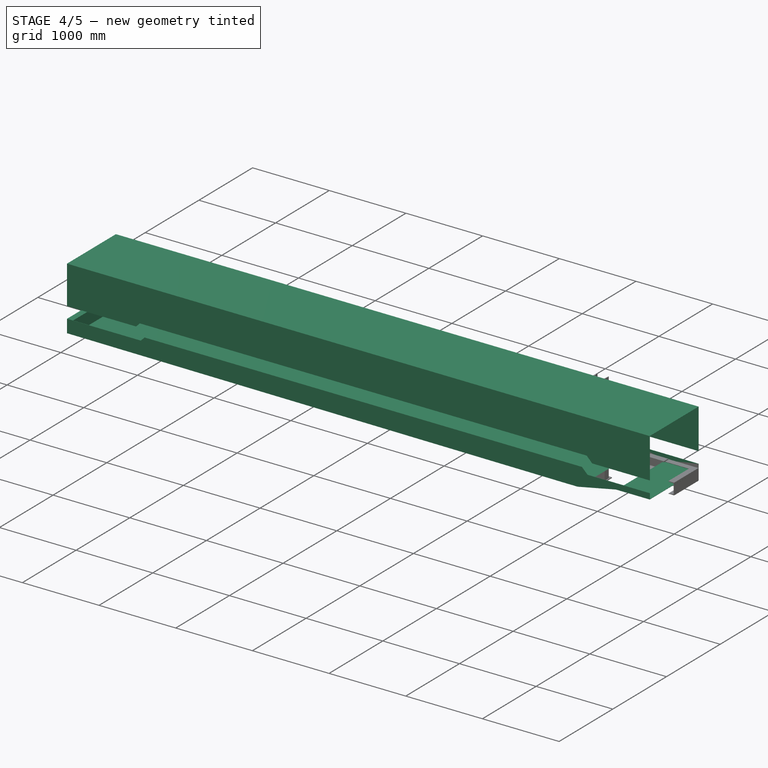
[diagram: stage 4 of 5 — iso view after this stage's code; geometry added in this stage tinted green]
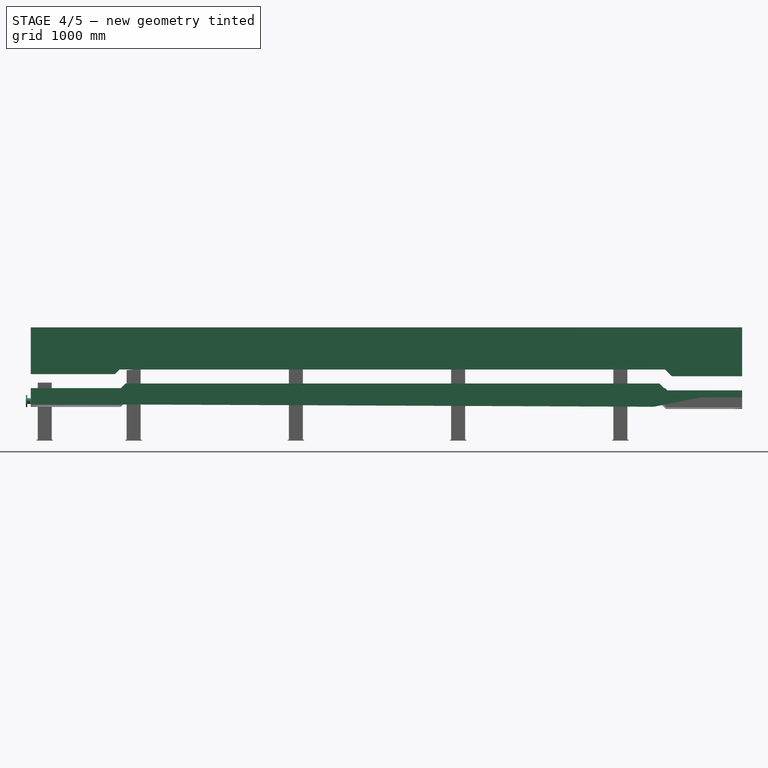
[diagram: stage 4 of 5 — front view after this stage's code; geometry added in this stage tinted green]
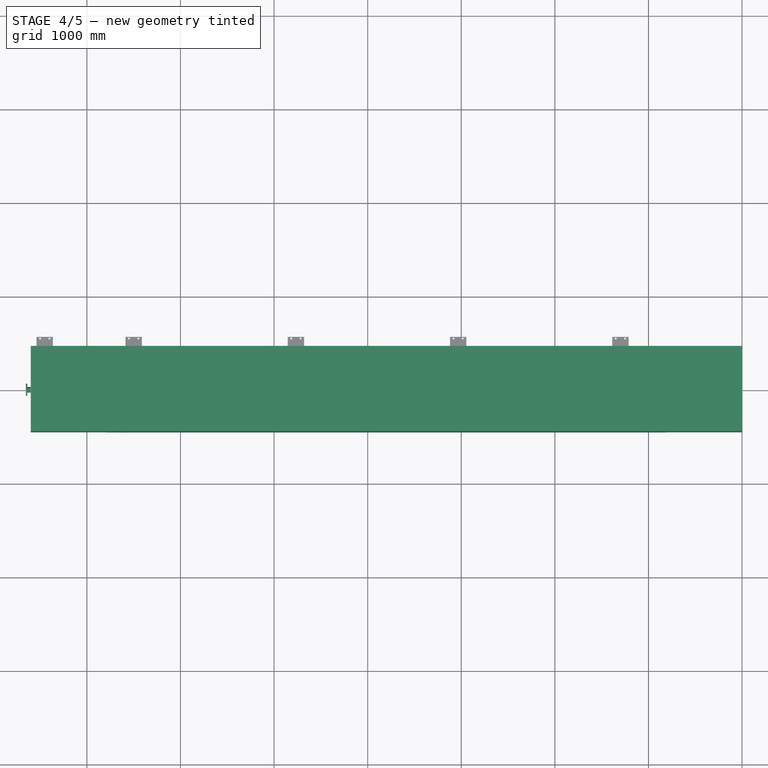
[diagram: stage 4 of 5 — top view after this stage's code; geometry added in this stage tinted green]
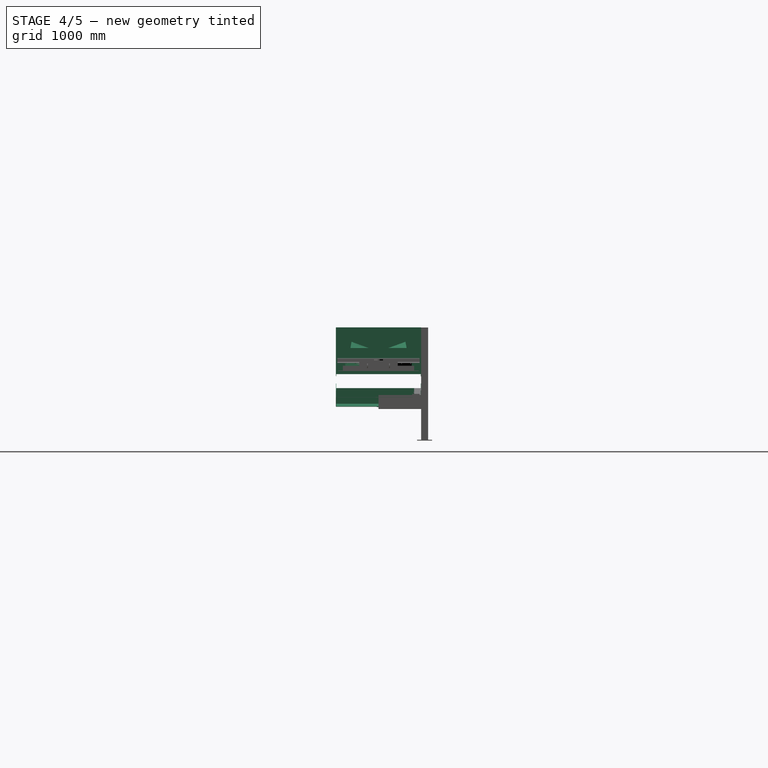
[diagram: stage 4 of 5 — right view after this stage's code; geometry added in this stage tinted green]
FEATURE [App::Part] Part011  label="Skirt"
  Group = -> [Part008,Mirror003]
  Origin = -> Origin016
  Placement = pos=(0,0,-27) rot=(0,0,1;0rad)
FEATURE [Sketcher::SketchObject] Sketch020
  ArcFitTolerance = 0
  FullyConstrained = true
  MakeInternals = false
  Placement = pos=(0,0,0) rot=(1,0,0;1.5708rad)
  expr: Constraints[21] = Spreadsheet001.h1
  expr: Constraints[22] = Spreadsheet001.C0 + 1100
  sketch-geometry (8):
    g0: LineSegment StartX=-600 StartY=-89 StartZ=0 EndX=-600 EndY=411 EndZ=0
    g1: LineSegment StartX=-600 StartY=411 StartZ=0 EndX=7000 EndY=411 EndZ=0
    g2: LineSegment StartX=7000 StartY=411 StartZ=0 EndX=7000 EndY=-112 EndZ=0
    g3: LineSegment StartX=7000 StartY=-112 StartZ=0 EndX=6250 EndY=-112 EndZ=0
    g4: LineSegment StartX=6250 StartY=-112 StartZ=0 EndX=6177 EndY=-39 EndZ=0
    g5: LineSegment StartX=6177 StartY=-39 StartZ=0 EndX=350 EndY=-39 EndZ=0
    g6: LineSegment StartX=350 StartY=-39 StartZ=0 EndX=300 EndY=-89 EndZ=0
    g7: LineSegment StartX=300 StartY=-89 StartZ=0 EndX=-600 EndY=-89 EndZ=0
  constraints (24):
    c: Vertical(g0)
    c: Coincident(g0,g1)
    c: Horizontal(g1)
    c: Coincident(g1,g2)
    c: Vertical(g2)
    c: Coincident(g2,g3)
    c: Horizontal(g3)
    c: Coincident(g3,g4)
    c: Coincident(g4,g5)
    c: Horizontal(g5)
    c: Coincident(g5,g6)
    c: Coincident(g6,g7)
    c: Coincident(g7,g0)
    c: Horizontal(g7)
    c: Distance(g-1,g0) = 600
    c: Distance(g-1,g7) = 89
    c: DistanceX(g-1,g6) = 300
    c: Angle(g6,g5) = 2.35619
    c: DistanceY(g-1,g2) = -112
    c: Angle(g3,g4) = 2.35619
    c: DistanceY(g0,g0) = 500
    c: DistanceY(g6,g5) = 50
    c: DistanceX(g1,g1) = 7600
    c: DistanceX(g3,g3) = 750
FEATURE [Part::Extrusion] Extrude012
  Base = -> Sketch020
  Dir = (0,-1,2e-16)
  DirMode = 2
  FaceMakerClass = Part::FaceMakerBullseye
  FaceMakerMode = 3
  LengthFwd = 910
  LengthRev = 0
  Solid = true
  Symmetric = true
FEATURE [Sketcher::SketchObject] Sketch023
  ArcFitTolerance = 0
  FullyConstrained = true
  MakeInternals = false
  Placement = pos=(0,0,0) rot=(1,0,0;1.5708rad)
  expr: Constraints[29] = Spreadsheet001.C0 + 500
  expr: Constraints[31] = Spreadsheet001.h1
  expr: Constraints[32] = Spreadsheet001.h2
  sketch-geometry (11):
    g0: LineSegment StartX=-600 StartY=-239 StartZ=0 EndX=362 EndY=-239 EndZ=0
    g1: LineSegment StartX=362 StartY=-239 StartZ=0 EndX=412 EndY=-189 EndZ=0
    g2: LineSegment StartX=412 StartY=-189 StartZ=0 EndX=6115 EndY=-189 EndZ=0
    g3: LineSegment StartX=6115 StartY=-189 StartZ=0 EndX=6188 EndY=-262 EndZ=0
    g4: LineSegment StartX=6188 StartY=-262 StartZ=0 EndX=7000 EndY=-262 EndZ=0
    g5: LineSegment StartX=6560 StartY=-337 StartZ=0 EndX=6060 EndY=-437 EndZ=0
    g6: LineSegment StartX=6060 StartY=-437 StartZ=0 EndX=5910 EndY=-437 EndZ=0
    g7: LineSegment StartX=5910 StartY=-437 StartZ=0 EndX=-600 EndY=-409 EndZ=0
    g8: LineSegment StartX=-600 StartY=-409 StartZ=0 EndX=-600 EndY=-239 EndZ=0
    g9: LineSegment StartX=6560 StartY=-337 StartZ=0 EndX=7000 EndY=-337 EndZ=0
    g10: LineSegment StartX=7000 StartY=-337 StartZ=0 EndX=7000 EndY=-262 EndZ=0
  constraints (33):
    c: Horizontal(g0)
    c: Coincident(g0,g1)
    c: Coincident(g1,g2)
    c: Horizontal(g2)
    c: Coincident(g2,g3)
    c: Coincident(g3,g4)
    c: Horizontal(g4)
    c: Coincident(g5,g6)
    c: Horizontal(g6)
    c: Coincident(g6,g7)
    c: Coincident(g7,g8)
    c: Coincident(g8,g0)
    c: Vertical(g8)
    c: DistanceY(g8,g8) = 170
    c: DistanceY(g0,g-1) = 239
    c: Angle(g1,g0) = 2.35619
    c: Angle(g4,g3) = 2.35619
    c: DistanceY(g5,g3) = 75
    c: DistanceX(g6,g6) = 150
    c: DistanceX(g5,g5) = 500
    c: DistanceY(g5,g5) = 100
    c: Horizontal(g9)
    c: Coincident(g10,g9)
    c: Coincident(g10,g4)
    c: Vertical(g10)
    c: Coincident(g9,g5)
    c: DistanceX(g5,g9) = 440
    c: DistanceX(g-2,g0) = 362
    c: DistanceX(g7,g-1) = 600
    c: DistanceX(g-1,g4) = 7000
    c: DistanceX(g4,g4) = 812
    c: DistanceY(g1,g1) = 50
    c: DistanceY(g3,g3) = 73
FEATURE [Part::Extrusion] Extrude015
  Base = -> Sketch023
  Dir = (0,-1,2e-16)
  DirMode = 2
  FaceMakerClass = Part::FaceMakerBullseye
  FaceMakerMode = 3
  LengthFwd = 910
  LengthRev = 0
  Solid = true
  Symmetric = true
FEATURE [Part::Sweep] Sweep
  Frenet = false
  Sections = -> [Sketch025,Sketch002]
  Solid = false
  Spine = -> Sketch026 [Edge1]
  Transition = 1
FEATURE [Part::Extrusion] Extrude018
  Base = -> Sweep
  Dir = (0,0,1)
  DirMode = 0
  FaceMakerClass = Part::FaceMakerBullseye
  FaceMakerMode = 3
  LengthFwd = 10
  LengthRev = 0
  Solid = false
  Symmetric = false
FEATURE [Part::Sweep] Sweep004
  Frenet = false
  Sections = -> [Sketch001,Sketch003]
  Solid = false
  Spine = -> Sketch008 [Edge1]
  Transition = 1
FEATURE [Part::Extrusion] Extrude019
  Base = -> Sweep004
  Dir = (0,0,1)
  DirMode = 0
  FaceMakerClass = Part::FaceMakerBullseye
  FaceMakerMode = 3
  LengthFwd = 10
  LengthRev = 0
  Solid = false
  Symmetric = false
FEATURE [App::Part] Part015  label="Belt"
  Group = -> [Sketch005,Extrude,Sketch001,Sketch025,Sketch002,Sketch003,Sketch026,Sketch008,Sketch009,Sweep003,Extrude017,Sweep,Extrude018,Sweep004,Extrude019]
  Origin = -> Origin020
  Placement = pos=(0,0,-30) rot=(0,0,1;0rad)
FEATURE [Part::FeaturePython] Single_flange_straight_pipe001  # WARN: FeaturePython — macro-defined, semantics opaque (R4)
  L = 50
  Placement = pos=(-651,0,-376.37) rot=(0,0,1;0rad)
  dia = 6
  fittings = 06_Single_flange_straight_pipe
  material = 0
  standard = 0
  standard2 = 0
FEATURE [Part::Feature] Self_Aligning_Return_600
  Placement = pos=(1000,0,-211) rot=(0,0,1;1.5708rad)
  shape: bbox 268 x 890 x 310 mm, 134 faces, 5 solids (baked)
FEATURE [Sketcher::SketchObject] Sketch032
  ArcFitTolerance = 0
  FullyConstrained = true
  MakeInternals = false
  Placement = pos=(0,0,0) rot=(1,0,0;1.5708rad)
  expr: Constraints[29] = Spreadsheet001.C0 + 522
  sketch-geometry (11):
    g0: LineSegment StartX=-522 StartY=-239 StartZ=0 EndX=362 EndY=-239 EndZ=0
    g1: LineSegment StartX=362 StartY=-239 StartZ=0 EndX=422 EndY=-179 EndZ=0
    g2: LineSegment StartX=422 StartY=-179 StartZ=0 EndX=6104 EndY=-179 EndZ=0
    g3: LineSegment StartX=6104 StartY=-179 StartZ=0 EndX=6187 EndY=-262 EndZ=0
    g4: LineSegment StartX=6187 StartY=-262 StartZ=0 EndX=7022 EndY=-262 EndZ=0
    g5: LineSegment StartX=6582 StartY=-337 StartZ=0 EndX=6082 EndY=-437 EndZ=0
    g6: LineSegment StartX=6082 StartY=-437 StartZ=0 EndX=5932 EndY=-437 EndZ=0
    g7: LineSegment StartX=5932 StartY=-437 StartZ=0 EndX=-522 EndY=-409 EndZ=0
    g8: LineSegment StartX=-522 StartY=-409 StartZ=0 EndX=-522 EndY=-239 EndZ=0
    g9: LineSegment StartX=6582 StartY=-337 StartZ=0 EndX=7022 EndY=-337 EndZ=0
    g10: LineSegment StartX=7022 StartY=-337 StartZ=0 EndX=7022 EndY=-262 EndZ=0
  constraints (33):
    c: Horizontal(g0)
    c: Coincident(g0,g1)
    c: Coincident(g1,g2)
    c: Horizontal(g2)
    c: Coincident(g2,g3)
    c: Coincident(g3,g4)
    c: Horizontal(g4)
    c: Coincident(g5,g6)
    c: Horizontal(g6)
    c: Coincident(g6,g7)
    c: Coincident(g7,g8)
    c: Coincident(g8,g0)
    c: Vertical(g8)
    c: DistanceY(g8,g8) = 170
    c: DistanceY(g0,g-1) = 239
    c: Angle(g1,g0) = 2.35619
    c: DistanceY(g-1,g2) = -179
    c: Angle(g4,g3) = 2.35619
    c: DistanceY(g-1,g3) = -262
    c: DistanceY(g5,g3) = 75
    c: DistanceX(g6,g6) = 150
    c: DistanceX(g5,g5) = 500
    c: DistanceY(g5,g5) = 100
    c: Horizontal(g9)
    c: Coincident(g10,g9)
    c: Coincident(g10,g4)
    c: Vertical(g10)
    c: Coincident(g9,g5)
    c: DistanceX(g5,g9) = 440
    c: DistanceX(g-2,g9) = 7022
    c: DistanceX(g-2,g0) = 362
    c: DistanceX(g4,g4) = 835
    c: DistanceX(g-2,g7) = -522
FEATURE [Part::Extrusion] Extrude031
  Base = -> Sketch032
  Dir = (0,-1,2e-16)
  DirMode = 2
  FaceMakerClass = Part::FaceMakerBullseye
  FaceMakerMode = 3
  LengthFwd = 904
  LengthRev = 0
  Placement = pos=(0,0,3) rot=(0,0,1;0rad)
  Solid = true
  Symmetric = true
FEATURE [Part::Cut] Cut
  Base = -> Extrude015
  Refine = true
  Tool = -> Extrude031
FEATURE [Sketcher::SketchObject] Sketch033
  ArcFitTolerance = 0
  FullyConstrained = true
  MakeInternals = false
  Placement = pos=(0,0,0) rot=(1,0,0;1.5708rad)
  expr: Constraints[22] = Spreadsheet001.C0 + 1194
  sketch-geometry (8):
    g0: LineSegment StartX=-597 StartY=-89 StartZ=0 EndX=-597 EndY=411 EndZ=0
    g1: LineSegment StartX=-597 StartY=411 StartZ=0 EndX=7097 EndY=411 EndZ=0
    g2: LineSegment StartX=7097 StartY=411 StartZ=0 EndX=7097 EndY=-112 EndZ=0
    g3: LineSegment StartX=7097 StartY=-112 StartZ=0 EndX=6247 EndY=-112 EndZ=0
    g4: LineSegment StartX=6247 StartY=-112 StartZ=0 EndX=6189 EndY=-54 EndZ=0
    g5: LineSegment StartX=6189 StartY=-54 StartZ=0 EndX=335 EndY=-54 EndZ=0
    g6: LineSegment StartX=335 StartY=-54 StartZ=0 EndX=300 EndY=-89 EndZ=0
    g7: LineSegment StartX=300 StartY=-89 StartZ=0 EndX=-597 EndY=-89 EndZ=0
  constraints (24):
    c: Vertical(g0)
    c: Coincident(g0,g1)
    c: Horizontal(g1)
    c: Coincident(g1,g2)
    c: Vertical(g2)
    c: Coincident(g2,g3)
    c: Horizontal(g3)
    c: Coincident(g3,g4)
    c: Coincident(g4,g5)
    c: Horizontal(g5)
    c: Coincident(g5,g6)
    c: Coincident(g6,g7)
    c: Coincident(g7,g0)
    c: Horizontal(g7)
    c: Distance(g-1,g0) = 597
    c: Distance(g-1,g7) = 89
    c: DistanceX(g-1,g6) = 300
    c: Angle(g6,g5) = 2.35619
    c: DistanceY(g6,g5) = 35
    c: DistanceY(g-1,g2) = -112
    c: Angle(g3,g4) = 2.35619
    c: DistanceY(g0,g0) = 500
    c: DistanceX(g1,g1) = 7694
    c: DistanceX(g3,g3) = 850
FEATURE [Part::Extrusion] Extrude032
  Base = -> Sketch033
  Dir = (0,-1,2e-16)
  DirMode = 2
  FaceMakerClass = Part::FaceMakerBullseye
  FaceMakerMode = 3
  LengthFwd = 904
  LengthRev = 0
  Placement = pos=(0,0,-3) rot=(0,0,1;0rad)
  Solid = true
  Symmetric = true
FEATURE [Part::Cut] Cut003
  Base = -> Extrude012
  Refine = true
  Tool = -> Extrude032
FEATURE [Sketcher::SketchObject] Sketch040
  ArcFitTolerance = 1e-06
  AttachmentSupport = -> [XY_Plane024]
  FullyConstrained = true
  MakeInternals = false
  MapMode = 5
  sketch-geometry (6):
    g0: LineSegment StartX=-447.594 StartY=354.915 StartZ=0 EndX=19.5016 EndY=27.8512 EndZ=0
    g1: ArcOfCircle CenterX=0 CenterY=0 CenterZ=0 NormalX=0 NormalY=0 NormalZ=1 AngleXU=0 Radius=34 StartAngle=0 EndAngle=0.959931
    g2: ArcOfCircle CenterX=0 CenterY=0 CenterZ=0 NormalX=0 NormalY=0 NormalZ=1 AngleXU=0 Radius=28 StartAngle=-5.3e-15 EndAngle=0.959931
    g3: LineSegment StartX=16.0601 StartY=22.9363 StartZ=0 EndX=-451.035 EndY=350 EndZ=0
    g4: LineSegment StartX=-451.035 StartY=350 StartZ=0 EndX=-447.594 EndY=354.915 EndZ=0
    g5: LineSegment StartX=28 StartY=-1.492e-13 StartZ=0 EndX=34 EndY=-1.492e-13 EndZ=0
  constraints (16):
    c: Tangent(g0,g1) = 1.5708
    c: Coincident(g3,g4)
    c: Coincident(g4,g0)
    c: Coincident(g2,g1)
    c: Coincident(g2,g-1)
    c: Tangent(g2,g3) = -1.5708
    c: Perpendicular(g4,g3)
    c: Parallel(g0,g3)
    c: Radius(g1) = 34
    c: Horizontal(g5)
    c: PointOnObject(g5,g-1)
    c: Coincident(g1,g5)
    c: Coincident(g2,g5)
    c: Angle(g3,g-1) = 0.610865
    c: Distance(g4,g4) = 6
    c: DistanceY(g-1,g3) = 350
FEATURE [PartDesign::Pad] Pad006
  Direction = (0,0,1)
  Length = 50
  Length2 = 10
  Profile = -> Sketch040
  ReferenceAxis = -> Sketch040 [N_Axis]
  Refine = true
  Suppressed = false
  Type = 0
FEATURE [Sketcher::SketchObject] Sketch041
  ArcFitTolerance = 1e-06
  AttachmentSupport = -> [XY_Plane024]
  ExternalGeometry = -> [Pad006]
  FullyConstrained = false
  MakeInternals = false
  MapMode = 5
  sketch-geometry (9):
    g0: LineSegment StartX=-94.6058 StartY=107.75 StartZ=0 EndX=-103.175 EndY=113.75 EndZ=0
    g1: LineSegment StartX=-103.175 StartY=113.75 StartZ=0 EndX=-1.74057 EndY=113.75 EndZ=0
    g2: LineSegment StartX=-1.74057 StartY=113.75 StartZ=0 EndX=-1.74057 EndY=107.75 EndZ=0
    g3: LineSegment StartX=-1.74057 StartY=107.75 StartZ=0 EndX=-94.6058 EndY=107.75 EndZ=0
    g4: LineSegment StartX=-113.172 StartY=120.75 StartZ=0 EndX=-121.741 EndY=126.75 EndZ=0
    g5: LineSegment StartX=-121.741 StartY=126.75 StartZ=0 EndX=-1.74057 EndY=126.75 EndZ=0
    g6: LineSegment StartX=-1.74057 StartY=126.75 StartZ=0 EndX=-1.74057 EndY=120.75 EndZ=0
    g7: LineSegment StartX=-1.74057 StartY=120.75 StartZ=0 EndX=-113.172 EndY=120.75 EndZ=0
    g8: LineSegment [constr] StartX=-135.198 StartY=117.25 StartZ=0 EndX=130.377 EndY=117.25 EndZ=0
  constraints (26):
    c: Coincident(g0,g1)
    c: Horizontal(g1)
    c: Coincident(g1,g2)
    c: Vertical(g2)
    c: Coincident(g2,g3)
    c: Coincident(g3,g0)
    c: Horizontal(g3)
    c: Coincident(g4,g5)
    c: Horizontal(g5)
    c: Coincident(g5,g6)
    c: Vertical(g6)
    c: Coincident(g6,g7)
    c: Coincident(g7,g4)
    c: Horizontal(g7)
    c: DistanceX(g5,g5) = 120
    c: Parallel(g4,g-3)
    c: Horizontal(g8)
    c: Distance(g8,g-1) = 117.25
    c: DistanceY(g6,g6) = 6
    c: DistanceY(g2,g2) = 6
    c: Vertical(g1,g6)
    c: PointOnObject(g4,g-3)
    c: Distance(g6,g8) = 3.5
    c: PointOnObject(g0,g-3)
    c: Parallel(g0,g-3)
    c: Distance(g1,g8) = 3.5
FEATURE [PartDesign::Pad] Pad007
  BaseFeature = -> Pad006
  Direction = (0,0,1)
  Length = 50
  Length2 = 10
  Profile = -> Sketch041
  ReferenceAxis = -> Sketch041 [N_Axis]
  Refine = true
  Suppressed = false
  Type = 0
FEATURE [PartDesign::Chamfer] Chamfer
  Angle = 45
  Base = -> Pad007 [Edge28,Edge40,Edge39,Edge27]
  BaseFeature = -> Pad007
  ChamferType = 0
  FlipDirection = false
  Refine = true
  Size = 5
  Size2 = 1
  SupportTransform = false
  Suppressed = false
  UseAllEdges = false
FEATURE [Sketcher::SketchObject] Sketch042
  ArcFitTolerance = 1e-06
  AttachmentSupport = -> [Chamfer]
  ExternalGeometry = -> [Chamfer]
  FullyConstrained = false
  MakeInternals = false
  MapMode = 5
  Placement = pos=(0,126.75,0) rot=(0,0.707107,0.707107;3.14159rad)
  sketch-geometry (1):
    g0: Circle CenterX=26.7406 CenterY=25.2413 CenterZ=0 NormalX=0 NormalY=0 NormalZ=1 AngleXU=0 Radius=6
  constraints (2):
    c: Diameter(g0) = 12
    c: Distance(g0,g-3) = 25
FEATURE [PartDesign::Pocket] Pocket
  BaseFeature = -> Chamfer
  Direction = (0,-1,2e-16)
  Length = 30
  Length2 = 5
  Profile = -> Sketch042
  ReferenceAxis = -> Sketch042 [N_Axis]
  Refine = true
  Suppressed = false
  Type = 0
FEATURE [Sketcher::SketchObject] Sketch043
  ArcFitTolerance = 1e-06
  AttachmentSupport = -> [Pocket]
  ExternalGeometry = -> [Pocket]
  FullyConstrained = true
  MakeInternals = false
  MapMode = 5
  Placement = pos=(16.0601,22.9363,0) rot=(0.913318,-0.287968,-0.287968;1.66134rad)
  sketch-geometry (1):
    g0: Circle CenterX=-550.218 CenterY=25 CenterZ=0 NormalX=0 NormalY=0 NormalZ=1 AngleXU=0 Radius=6
  constraints (3):
    c: DistanceY(g-1,g0) = 25
    c: Diameter(g0) = 12
    c: Distance(g0,g-3) = 20
FEATURE [PartDesign::Pocket] Pocket001
  BaseFeature = -> Pocket
  Direction = (0.573576,0.819152,0)
  Length = 5
  Length2 = 5
  Profile = -> Sketch043
  ReferenceAxis = -> Sketch043 [N_Axis]
  Refine = true
  Suppressed = false
  Type = 1
FEATURE [PartDesign::LinearPattern] LinearPattern
  BaseFeature = -> Pocket001
  Direction = -> Sketch043 [H_Axis]
  Length = 510
  Mode = 1
  Occurrences = 4
  Offset = 170
  Originals = -> [Pocket001]
  Refine = true
  Suppressed = false
  TransformMode = 0
FEATURE [PartDesign::Mirrored] Mirrored
  BaseFeature = -> LinearPattern
  MirrorPlane = -> XZ_Plane024
  Refine = true
  Suppressed = false
  TransformMode = 1
FEATURE [PartDesign::LinearPattern] LinearPattern001
  BaseFeature = -> Pocket003
  Direction = -> Sketch045 [H_Axis]
  Length = 510
  Mode = 1
  Occurrences = 4
  Offset = 170
  Originals = -> [Pocket003]
  Refine = true
  Suppressed = false
  TransformMode = 0
FEATURE [PartDesign::Mirrored] Mirrored001
  BaseFeature = -> LinearPattern001
  MirrorPlane = -> XZ_Plane026
  Refine = true
  Suppressed = false
  TransformMode = 1
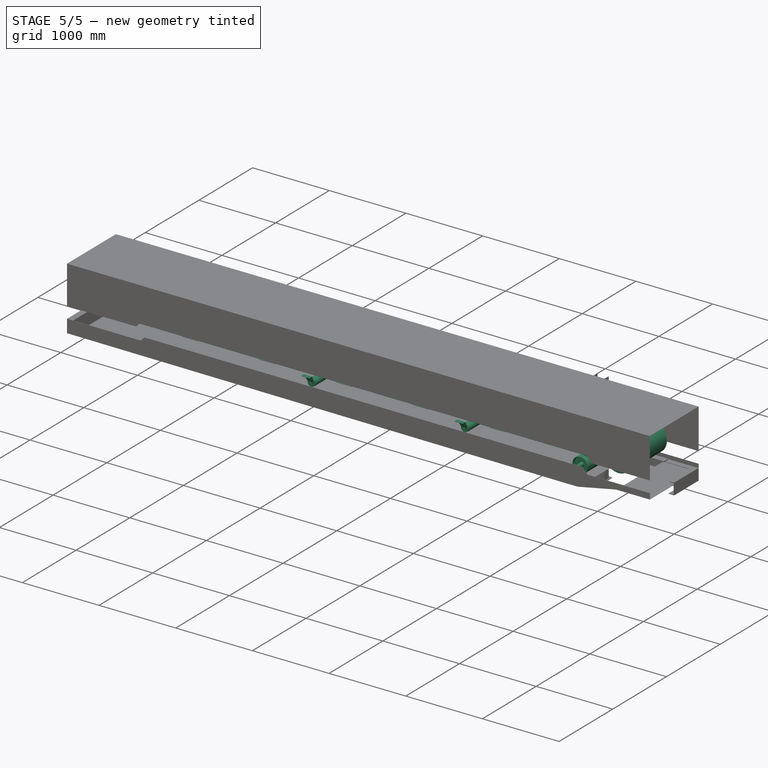
[diagram: stage 5 of 5 — iso view after this stage's code; geometry added in this stage tinted green]
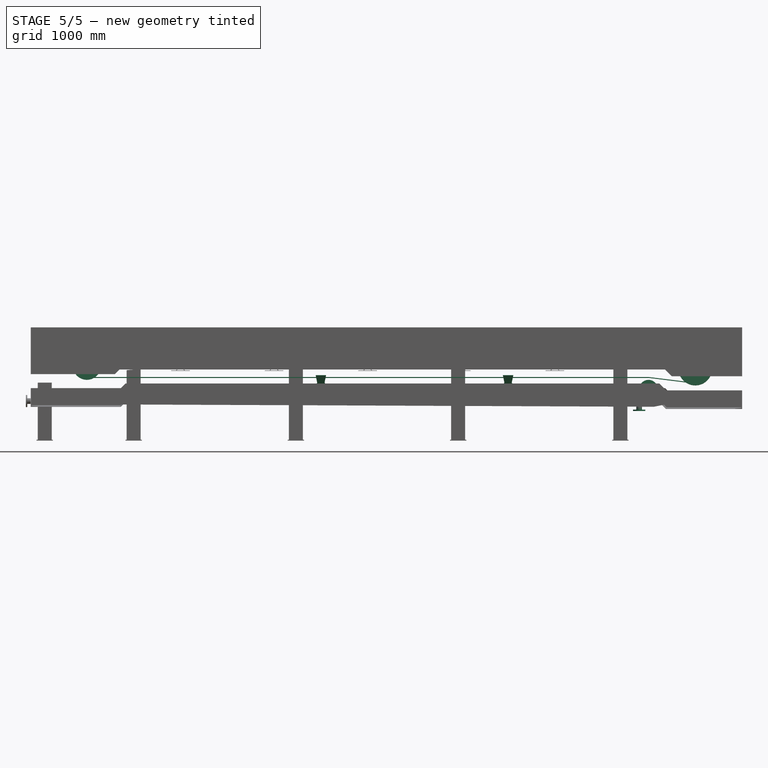
[diagram: stage 5 of 5 — front view after this stage's code; geometry added in this stage tinted green]
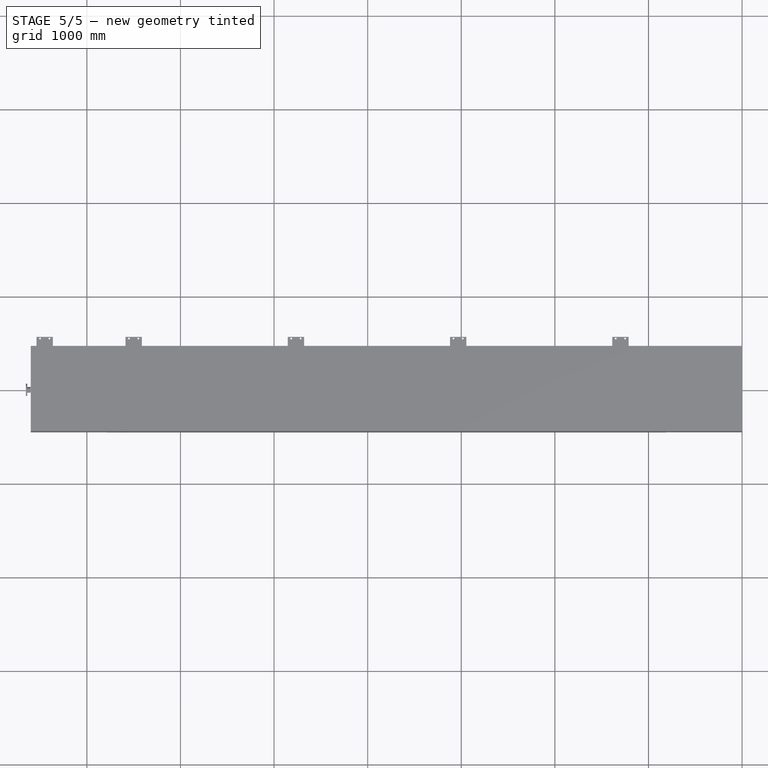
[diagram: stage 5 of 5 — top view after this stage's code; geometry added in this stage tinted green]
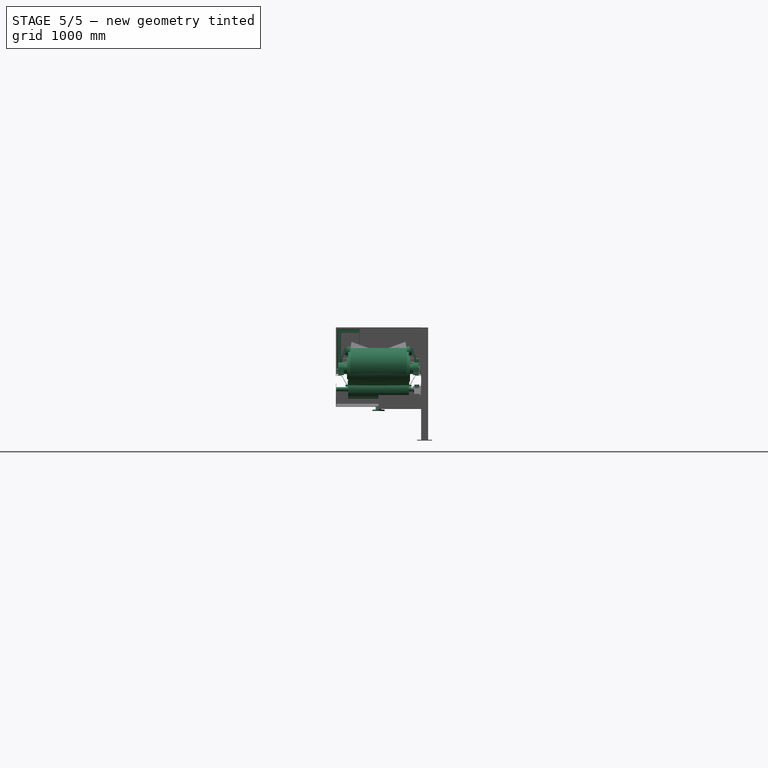
[diagram: stage 5 of 5 — right view after this stage's code; geometry added in this stage tinted green]
FEATURE [Spreadsheet::Sheet] Spreadsheet001  label="Spreadsheet"
  cells = C1='tailPulleyHIght Ht; D1='Inclination k(degree); E1='Array_n; F1='BeltWidth B0; G1='h1; H1='h2; I1='post_x; J1='pst_c; A2='CenterDistance C0; B2(C0)=6500; C2(Ht)=800; D2(k)=5; E2(n0)==C0 / 2500; F2=600; G2(h1)=50; H2(h2)=73; I2(post_x)=1733.33333333333; J2(post_c)=2; A3='BeltWidth B0; B3(B0)=600; C3=400; D3=450; E3=500; F3=600; G3=700; H3=750; I3=800; J3=900; K3=1000; A4='Belt b1; B4(b1)=210; C4=145; D4=165; E4=180; F4=210; G4=250; H4=265; I4=280; J4=315; K4=345; A5='Belt b2; B5(b2)=195; C5==(C3 - C4) / 2; D5==(D3 - D4) / 2; E5==(E3 - E4) / 2; F5==(F3 - F4) / 2; G5==(G3 - G4) / 2; H5==(H3 - H4) / 2; I5==(I3 - I4) / 2; J5==(J3 - J4) / 2; K5==(K3 - K4) / 2; A6='BeltThickness t0; B6(t0)=10; C6=10; D6=10; E6=10; F6=10; G6=10; H6=10; I6=10; J6=10; K6=10; A7='HeadPullyDia D0; B7(D0)=360; C7=300; D7=300; E7=360; F7=360; G7=360; H7=460; I7=460; J7=520; K7=520; A8='TailPullyDia d1; B8(d1)=300; C8=260; D8=260; E8=300; F8=300; G8=300; H8=390; I8=390; J8=440; K8=440; A9='SnapPullyDia d2; B9(d2)=200; C9=200; D9=200; E9=200; F9=200; G9=200; H9=200; I9=200; J9=200; K9=200; A10='SnapPully Ls; B10(Ls)=500; C10=400; D10=400; E10=400; F10=500; G10=500; H10=500; I10=500; J10=500; K10=500; A11='SnapPully h0; B11(h0)=180; C11=180; D11=180; E11=160; F11=180; G11=180; H11=180; I11=180; J11=180; K11=180; A12='hontaihaba W; B12(W0)=910; C12=710; D12=760; E12=810; F12=910; G12=910; H12=910; I12=910; J12=910; K12=910; A13='hontai _h; B13=103.5; C13=103.5; D13=103.5; E13=103.5; F13=103.5; G13=103.5; H13=103.5; I13=103.5; J13=103.5; K13=103.5; A14='hontai_z; B14=16; C14=16; D14=16; E14=16; F14=16; G14=16; H14=16; I14=16; J14=16; K14=16; A15='takeup_x; B15=-403.47; C15=-403.47; D15=-403.47; E15=-403.47; F15=-403.47; G15=-403.47; H15=-403.47; I15=-403.47; J15=-403.47; K15=-403.47; A16='takeup_y; B16=-410; C16=-362.8; D16=-362.8; E16=-362.8; F16=-410; G16=-410; H16=-410; I16=-410; J16=-410; K16=-410; A17='takeup_z; B17=-57; C17=-87; D17=-87; E17=-87; F17=-57; G17=-57; H17=-57; I17=-57; J17=-57; K17=-57; A18='carrierPitch  cp; B18=1000; A19='returnPitch rp; B19=1500; A20='outletL; B20(outletL)=50; A21='outletK; B21(outletK)=0; A22='insertX; B22(insertX)=300; A23='insertK; B23(insertK)=0
FEATURE [Part::FeaturePython] CPM2_4145  # WARN: FeaturePython — macro-defined, semantics opaque (R4)
  A = 650
  B1 = 500
  B2 = 600
  C = 70
  D = 360
  D1 = 356
  D2 = 228
  D3 = 278
  E = 170
  F = 0
  G1 = 30
  G2 = 30
  H = 33
  L = 863
  M = 210
  N1 = 60
  N2 = 60
  P = 75
  Placement = pos=(6500,0,-30) rot=(0,0,1;1.5708rad)
  R = 20
  a = 11
  b = 11
  d = 18
  key = 5
  expr: .Placement.Base.x = Spreadsheet001.C0
FEATURE [Part::FeaturePython] BendPulley  # WARN: FeaturePython — macro-defined, semantics opaque (R4)
  A = 50
  B = 103.5
  C = 700
  D = 200
  E = 0
  L = 650
  Placement = pos=(6000,1.79e-13,-250.18) rot=(0,0,-1;1.5708rad)
  d1 = 50
  d2 = 45
  d3 = 0
  t1 = 9
  t2 = 9
  t3 = 8
  t4 = 8
  expr: .Placement.Base.x = Spreadsheet001.C0 - 500
FEATURE [Part::Feature] Part__Feature004  label="UCP208FC"
  Placement = pos=(6000,-410,-250.18) rot=(0,0.707107,-0.707107;3.14159rad)
  shape: bbox 184 x 86 x 106.1 mm, 117 faces (baked)
  expr: .Placement.Base.x = Spreadsheet001.C0 - 500
FEATURE [Part::Mirroring] Part__Mirroring001  label="UCP208FC (Mirror #3)"
  Base = (0,0,0)
  Normal = (0,1,0)
  Source = -> Part__Feature004
FEATURE [Part::Feature] Part__Feature005  label="UCT204-Nipple001"
  Placement = pos=(402.082,85.3824,0) rot=(0.519988,-0.677661,0.519988;1.95044rad)
  shape: bbox 18.99 x 12.27 x 15.73 mm, 44 faces (baked)
FEATURE [Part::Feature] Part__Feature006  label="UCT204-Housing003"
  Placement = pos=(435,77,0) rot=(0,0,1;0rad)
  shape: bbox 145.2 x 120 x 60 mm, 83 faces (baked)
FEATURE [Part::Feature] Part__Feature007  label="UCTL204-300-Frame001"
  Placement = pos=(285,77,0) rot=(0,0,1;0rad)
  shape: bbox 630 x 146 x 56.5 mm, 312 faces (baked)
FEATURE [App::Part] UCTL204J_300_001  label="UCTL204J-300-001"
  Group = -> [Part__Feature005,Part__Feature006,Part__Feature007]
  Origin = -> Origin008
FEATURE [App::Part] _______________________________20_v002  label="テークアップユニット_20 v002"
  Group = -> [UCTL204J_300_001]
  Origin = -> Origin009
  Placement = pos=(-435,-410,-77) rot=(1,0,0;1.5708rad)
FEATURE [Part::FeaturePython] Take_upPulley001  # WARN: FeaturePython — macro-defined, semantics opaque (R4)
  A = 50
  B = 50
  C = 768
  D = 300
  E = 0
  L = 650
  Placement = pos=(0,0,0) rot=(0,0,-1;1.5708rad)
  d1 = 30
  d2 = 20
  d3 = 0
  t1 = 9
  t2 = 9
  t3 = 8
  t4 = 8
FEATURE [Sketcher::SketchObject] Sketch015
  ArcFitTolerance = 0
  FullyConstrained = true
  MakeInternals = false
  sketch-geometry (10):
    g0: LineSegment StartX=-600 StartY=-625 StartZ=0 EndX=-600 EndY=625 EndZ=0
    g1: LineSegment StartX=-600 StartY=625 StartZ=0 EndX=600 EndY=625 EndZ=0
    g2: LineSegment StartX=600 StartY=625 StartZ=0 EndX=600 EndY=-625 EndZ=0
    g3: LineSegment StartX=600 StartY=-625 StartZ=0 EndX=-600 EndY=-625 EndZ=0
    g4: GeomPoint [constr] X=0 Y=0 Z=0
    g5: LineSegment StartX=-525 StartY=-550 StartZ=0 EndX=-525 EndY=550 EndZ=0
    g6: LineSegment StartX=-525 StartY=550 StartZ=0 EndX=525 EndY=550 EndZ=0
    g7: LineSegment StartX=525 StartY=550 StartZ=0 EndX=525 EndY=-550 EndZ=0
    g8: LineSegment StartX=525 StartY=-550 StartZ=0 EndX=-525 EndY=-550 EndZ=0
    g9: GeomPoint [constr] X=0 Y=0 Z=0
  constraints (24):
    c: Coincident(g0,g1)
    c: Coincident(g1,g2)
    c: Coincident(g2,g3)
    c: Coincident(g3,g0)
    c: Horizontal(g1)
    c: Horizontal(g3)
    c: Vertical(g0)
    c: Vertical(g2)
    c: Symmetric(g1,g0,g4)
    c: Coincident(g4,g-1)
    c: Distance(g0) = 1250
    c: Distance(g4,g0) = 600
    c: Coincident(g5,g6)
    c: Coincident(g6,g7)
    c: Coincident(g7,g8)
    c: Coincident(g8,g5)
    c: Horizontal(g6)
    c: Horizontal(g8)
    c: Vertical(g5)
    c: Vertical(g7)
    c: Symmetric(g6,g5,g9)
    c: Coincident(g9,g4)
    c: Distance(g5,g0) = 75
    c: Distance(g5,g1) = 75
FEATURE [Part::Mirroring] Mirror002  label="テークアップユニット_20 v1 (mirrored)001"
  Base = (-400,0,0)
  Normal = (0,-1,0)
  Source = -> _______________________________20_v002
FEATURE [Part::Compound] Compound001  label="takeUp001"
  Links = -> [Mirror002,_______________________________20_v002]
FEATURE [App::Part] Part005  label="pulley001"
  Group = -> [Take_upPulley001]
  Origin = -> Origin011
  Placement = pos=(0,0,0) rot=(0,1,0;2.1293rad)
FEATURE [Spreadsheet::Sheet] Spreadsheet002  label="Spreadsheet_takeup001"
  cells = A1='beltWidth; B1='takeup d0; C1='d1=d0+10; D1='pulley D0; E1='puller L0; F1='puller C0; G1='puller B0; H1='takeup Y; A2(W0)=600; B2(d0)=20; C2(d1)==d0 + 10; D2(D0)=300; E2(L0)=650; F2(C0)=768; G2(B0)=50; H2(Y)=410; A3=400; B3=20; C3==d0 + 10; D3=300; E3=450; F3=568; G3=50; H3=310; A4=450; B4=20; C4==d0 + 10; D4=300; E4=500; F4=618; G4=50; H4=335; A5=500; B5=20; C5==d0 + 10; D5=300; E5=550; F5=668; G5=50; H5=360; A6=600; B6=20; C6==d0 + 10; D6=300; E6=650; F6=768; G6=50; H6=410; A7=700; B7=20; C7==d0 + 10; D7=300; E7=750; F7=868; G7=50; H7=460; A8=750; B8=20; C8==d0 + 10; D8=300; E8=800; F8=918; G8=50; H8=485; A9=800; B9=20; C9==d0 + 10; D9=300; E9=850; F9=968; G9=50; H9=510; A10=900; B10=20; C10==d0 + 10; D10=300; E10=950; F10=1068; G10=50; H10=560; A11=1000; B11=20; C11==d0 + 10; D11=300; E11=1050; F11=1168; G11=50; H11=610
FEATURE [App::Part] Part004  label="takeUpAssy20d001"
  Group = -> [_______________________________20_v002,Mirror002,Compound001,Sketch015,Part005,Spreadsheet002]
  Origin = -> Origin010
FEATURE [App::Part] Part006  label="bendPulley"
  Group = -> [BendPulley,Part__Feature004,Part__Mirroring001]
  Origin = -> Origin012
  Placement = pos=(0,0,-8) rot=(0,0,1;0rad)
FEATURE [Sketcher::SketchObject] Sketch016
  ArcFitTolerance = 0
  FullyConstrained = true
  MakeInternals = false
  Placement = pos=(0,0,0) rot=(0.57735,0.57735,0.57735;2.0944rad)
  sketch-geometry (6):
    g0: LineSegment StartX=200 StartY=225 StartZ=0 EndX=206 EndY=225 EndZ=0
    g1: LineSegment StartX=206 StartY=225 StartZ=0 EndX=206 EndY=394 EndZ=0
    g2: LineSegment StartX=200 StartY=400 StartZ=0 EndX=200 EndY=225 EndZ=0
    g3: LineSegment StartX=250 StartY=400 StartZ=0 EndX=250 EndY=394 EndZ=0
    g4: LineSegment StartX=250 StartY=394 StartZ=0 EndX=206 EndY=394 EndZ=0
    g5: LineSegment StartX=200 StartY=400 StartZ=0 EndX=250 EndY=400 EndZ=0
  constraints (18):
    c: Coincident(g0,g1)
    c: Coincident(g2,g0)
    c: Horizontal(g0)
    c: Vertical(g1)
    c: Vertical(g2)
    c: DistanceX(g-2,g2) = 200
    c: Vertical(g3)
    c: Coincident(g3,g4)
    c: Horizontal(g4)
    c: Coincident(g1,g4)
    c: Coincident(g5,g2)
    c: Coincident(g5,g3)
    c: Horizontal(g5)
    c: DistanceY(g3,g3) = 6
    c: DistanceX(g5,g5) = 50
    c: DistanceY(g2,g2) = 175
    c: DistanceX(g0,g0) = 6
    c: DistanceY(g-1,g2) = 400
FEATURE [Part::Extrusion] Extrude010
  Base = -> Sketch016
  Dir = (1,0,0)
  DirMode = 2
  FaceMakerClass = Part::FaceMakerBullseye
  FaceMakerMode = 3
  LengthFwd = 6500
  LengthRev = 0
  Solid = true
  Symmetric = false
  expr: LengthFwd = Spreadsheet001.C0
FEATURE [Sketcher::SketchObject] Sketch017
  ArcFitTolerance = 0
  FullyConstrained = false
  MakeInternals = false
  Placement = pos=(0,0,0) rot=(0.57735,0.57735,0.57735;2.0944rad)
  sketch-geometry (2):
    g0: LineSegment StartX=205.947 StartY=393.774 StartZ=0 EndX=443.566 EndY=393.774 EndZ=0
    g1: LineSegment StartX=443.566 StartY=393.774 StartZ=0 EndX=443.566 EndY=-26.5991 EndZ=0
  constraints (3):
    c: Horizontal(g0)
    c: Vertical(g1)
    c: Coincident(g1,g0)
FEATURE [Part::FeaturePython] AngleSteel  # WARN: FeaturePython — macro-defined, semantics opaque (R4)
  A = 40
  B = 40
  L = 1000
  Placement = pos=(0,223.3,394) rot=(1,0,0;3.14159rad)
  Solid = false
  g0 = 7.85
  mass = 0
  size = 5
  standard = SS_Equal
  t = 5
FEATURE [Part::Sweep] Sweep002
  Frenet = false
  Sections = -> [AngleSteel]
  Solid = true
  Spine = -> Sketch017 [Edge1,Edge2]
  Transition = 1
FEATURE [Sketcher::SketchObject] Sketch018
  ArcFitTolerance = 0
  AttachmentSupport = -> [Sweep002]
  FullyConstrained = false
  MakeInternals = false
  MapMode = 5
  Placement = pos=(0,6.4e-15,-26.5991) rot=(1,0,0;3.14159rad)
  sketch-geometry (4):
    g0: LineSegment StartX=-30 StartY=-443.912 StartZ=0 EndX=40.1109 EndY=-443.912 EndZ=0
    g1: LineSegment StartX=40.1109 StartY=-443.912 StartZ=0 EndX=40.1109 EndY=-403.912 EndZ=0
    g2: LineSegment StartX=40.1109 StartY=-403.912 StartZ=0 EndX=-30 EndY=-403.912 EndZ=0
    g3: LineSegment StartX=-30 StartY=-403.912 StartZ=0 EndX=-30 EndY=-443.912 EndZ=0
  constraints (10):
    c: Coincident(g0,g1)
    c: Coincident(g1,g2)
    c: Coincident(g2,g3)
    c: Coincident(g3,g0)
    c: Horizontal(g0)
    c: Horizontal(g2)
    c: Vertical(g1)
    c: Vertical(g3)
    c: DistanceY(g3,g3) = 40
    c: DistanceX(g-2,g0) = -30
FEATURE [Part::Extrusion] Extrude011
  Base = -> Sketch018
  Dir = (0,0,-1)
  DirMode = 2
  FaceMakerClass = Part::FaceMakerBullseye
  FaceMakerMode = 3
  LengthFwd = 6
  LengthRev = 0
  Reversed = true
  Solid = true
  Symmetric = false
FEATURE [App::Part] Part009  label="post001"
  Group = -> [Sketch017,Sweep002,AngleSteel,Extrude011,Sketch018]
  Origin = -> Origin014
  Placement = pos=(449,0,0) rot=(0,0,1;0rad)
FEATURE [Part::FeaturePython] Clone001  label="post002"  # Draft clone (typed FeaturePython)
  AttacherType = Attacher::AttachEngine3D
  Fuse = false
  Objects = -> [Part009]
  Placement = pos=(6100,0,0) rot=(0,0,1;0rad)
  Scale = (1,1,1)
  expr: .Placement.Base.x = Spreadsheet001.C0 - 400
FEATURE [Part::FeaturePython] Array003  # Draft array (typed FeaturePython)
  AlwaysSyncPlacement = false
  Angle = 360
  ArrayType = 0
  Axis = (0,0,1)
  Base = -> Part009
  Center = (0,0,0)
  Count = 3
  ExpandArray = false
  Fuse = false
  IntervalAxis = (0,0,0)
  IntervalX = (1500,0,0)
  IntervalY = (0,100,0)
  IntervalZ = (0,0,100)
  NumberCircles = 3
  NumberPolar = 5
  NumberX = 3
  NumberY = 1
  NumberZ = 1
  PlacementList = 3 placements: arithmetic series from (449,0,0) step (1500,0,0) to (3449,0,0)
  RadialDistance = 50
  ScaleList = (3) [(1,1,1),(1,1,1),(1,1,1)]
  Symmetry = 1
  TangentialDistance = 25
  expr: NumberX = Spreadsheet001.C0 / 1500 - 1
FEATURE [App::Part] Part008  label="skirt"
  Group = -> [Sketch016,Extrude010,Part009,Clone001,Array003]
  Origin = -> Origin013
FEATURE [Part::Mirroring] Mirror003  label="skirt001"
  Base = (-900,0,0)
  Normal = (0,-1,0)
  Source = -> Part008
FEATURE [Part::FeaturePython] Single_flange_straight_pipe  # WARN: FeaturePython — macro-defined, semantics opaque (R4)
  L = 50
  Placement = pos=(5900,0,-482.41) rot=(0,-1,0;1.5708rad)
  dia = 6
  fittings = 06_Single_flange_straight_pipe
  material = 0
  standard = 0
  standard2 = 0
  expr: .Placement.Base.x = Spreadsheet001.C0 - 600
FEATURE [Part::MultiFuse] Fusion009
  Shapes = -> [Single_flange_straight_pipe]
FEATURE [Sketcher::SketchObject] Sketch025
  ArcFitTolerance = 0
  FullyConstrained = true
  MakeInternals = false
  Placement = pos=(0,0,0) rot=(0.57735,0.57735,0.57735;2.0944rad)
  expr: Constraints[1] = Spreadsheet001.B0
  expr: Constraints[2] = Spreadsheet001.D0 / 2
  sketch-geometry (1):
    g0: LineSegment StartX=-300 StartY=180 StartZ=0 EndX=300 EndY=180 EndZ=0
  constraints (3):
    c: Symmetric(g0,g0,g-2)
    c: DistanceX(g0,g0) = 600
    c: Distance(g-1,g0) = 180
FEATURE [Sketcher::SketchObject] Sketch001
  ArcFitTolerance = 0
  FullyConstrained = true
  MakeInternals = false
  Placement = pos=(6500,0,0) rot=(0.57735,0.57735,0.57735;2.0944rad)
  expr: .Placement.Base.x = Spreadsheet001.C0
  expr: Constraints[1] = Spreadsheet001.B0
  expr: Constraints[2] = Spreadsheet001.D0 / 2
  sketch-geometry (1):
    g0: LineSegment StartX=-300 StartY=180 StartZ=0 EndX=300 EndY=180 EndZ=0
  constraints (3):
    c: Symmetric(g0,g0,g-2)
    c: DistanceX(g0,g0) = 600
    c: Distance(g-1,g0) = 180
FEATURE [Sketcher::SketchObject] Sketch002
  ArcFitTolerance = 0
  FullyConstrained = true
  MakeInternals = false
  Placement = pos=(500,0,0) rot=(0.57735,0.57735,0.57735;2.0944rad)
  expr: Constraints[5] = Spreadsheet001.b2
  expr: Constraints[6] = Spreadsheet001.b2
  expr: Constraints[7] = Spreadsheet001.D0 / 2
  expr: Constraints[8] = Spreadsheet001.b1
  sketch-geometry (3):
    g0: LineSegment StartX=-288.24 StartY=246.694 StartZ=0 EndX=-105 EndY=180 EndZ=0
    g1: LineSegment StartX=-105 StartY=180 StartZ=0 EndX=105 EndY=180 EndZ=0
    g2: LineSegment StartX=105 StartY=180 StartZ=0 EndX=288.24 EndY=246.694 EndZ=0
  constraints (9):
    c: Coincident(g0,g1)
    c: Coincident(g1,g2)
    c: Angle(g2,g1) = 2.79253
    c: Angle(g1,g0) = 2.79253
    c: Symmetric(g1,g0,g-2)
    c: Distance(g2) = 195
    c: Distance(g0) = 195
    c: DistanceY(g-1,g1) = 180
    c: DistanceX(g1,g1) = 210
FEATURE [Sketcher::SketchObject] Sketch003
  ArcFitTolerance = 0
  FullyConstrained = true
  MakeInternals = false
  Placement = pos=(6000,0,0) rot=(0.57735,0.57735,0.57735;2.0944rad)
  expr: .Placement.Base.x = Spreadsheet001.C0 - 500
  expr: Constraints[5] = Spreadsheet001.b2
  expr: Constraints[6] = Spreadsheet001.b2
  expr: Constraints[7] = Spreadsheet001.D0 / 2
  expr: Constraints[8] = Spreadsheet001.b1
  sketch-geometry (3):
    g0: LineSegment StartX=-288.24 StartY=246.694 StartZ=0 EndX=-105 EndY=180 EndZ=0
    g1: LineSegment StartX=-105 StartY=180 StartZ=0 EndX=105 EndY=180 EndZ=0
    g2: LineSegment StartX=105 StartY=180 StartZ=0 EndX=288.24 EndY=246.694 EndZ=0
  constraints (9):
    c: Coincident(g0,g1)
    c: Coincident(g1,g2)
    c: Angle(g2,g1) = 2.79253
    c: Angle(g1,g0) = 2.79253
    c: Symmetric(g1,g0,g-2)
    c: Distance(g2) = 195
    c: Distance(g0) = 195
    c: DistanceY(g-1,g1) = 180
    c: DistanceX(g1,g1) = 210
FEATURE [Sketcher::SketchObject] Sketch005
  ArcFitTolerance = 0
  FullyConstrained = true
  MakeInternals = false
  Placement = pos=(6500,0,0) rot=(1,0,0;1.5708rad)
  expr: .Placement.Base.x = Spreadsheet001.C0
  expr: Constraints[0] = Spreadsheet001.D0
  expr: Constraints[10] = Spreadsheet001.Ls
  expr: Constraints[20] = Spreadsheet001.t0
  expr: Constraints[22] = Spreadsheet001.t0
  expr: Constraints[29] = (Spreadsheet001.D0 - Spreadsheet001.d1) / 2
  expr: Constraints[2] = Spreadsheet001.d1
  expr: Constraints[6] = Spreadsheet001.d2 / 2
  expr: Constraints[8] = Spreadsheet001.C0
  sketch-geometry (12):
    g0: ArcOfCircle CenterX=0 CenterY=0 CenterZ=0 NormalX=0 NormalY=0 NormalZ=1 AngleXU=0 Radius=180 StartAngle=4.58871 EndAngle=7.85398
    g1: ArcOfCircle CenterX=-6500 CenterY=30 CenterZ=0 NormalX=0 NormalY=0 NormalZ=1 AngleXU=0 Radius=150 StartAngle=1.5708 EndAngle=4.71239
    g2: LineSegment StartX=-22.2048 StartY=-178.625 StartZ=0 EndX=-487.664 EndY=-120.764 EndZ=0
    g3: LineSegment StartX=-500 StartY=-120 StartZ=0 EndX=-6500 EndY=-120 EndZ=0
    g4: ArcOfCircle CenterX=-500 CenterY=-220 CenterZ=0 NormalX=0 NormalY=0 NormalZ=1 AngleXU=0 Radius=100 StartAngle=1.44712 EndAngle=1.5708
    g5: ArcOfCircle CenterX=-6500 CenterY=30 CenterZ=0 NormalX=0 NormalY=0 NormalZ=1 AngleXU=0 Radius=160 StartAngle=1.5708 EndAngle=4.71239
    g6: LineSegment StartX=-6500 StartY=-130 StartZ=0 EndX=-500 EndY=-130 EndZ=0
    g7: ArcOfCircle CenterX=-500 CenterY=-220 CenterZ=0 NormalX=0 NormalY=0 NormalZ=1 AngleXU=0 Radius=90 StartAngle=1.44712 EndAngle=1.5708
    g8: LineSegment StartX=-488.898 StartY=-130.687 StartZ=0 EndX=-23.4385 EndY=-188.549 EndZ=0
    g9: ArcOfCircle CenterX=0 CenterY=0 CenterZ=0 NormalX=0 NormalY=0 NormalZ=1 AngleXU=0 Radius=190 StartAngle=4.58871 EndAngle=7.85398
    g10: LineSegment StartX=0 StartY=180 StartZ=0 EndX=0 EndY=190 EndZ=0
    g11: LineSegment StartX=-6500 StartY=180 StartZ=0 EndX=-6500 EndY=190 EndZ=0
  constraints (32):
    c: Diameter(g0) = 360
    c: Coincident(g-1,g0)
    c: Diameter(g1) = 300
    c: Horizontal(g3)
    c: Tangent(g2,g4) = -1.5708
    c: Tangent(g3,g4) = -1.5708
    c: Radius(g4) = 100
    c: Coincident(g1,g3)
    c: DistanceX(g1,g0) = 6500
    c: Vertical(g0,g0)
    c: DistanceX(g4,g0) = 500
    c: Vertical(g1,g1)
    c: Coincident(g5,g1)
    c: Tangent(g5,g6) = -1.5708
    c: Tangent(g6,g7) = 1.5708
    c: Tangent(g8,g9) = -1.5708
    c: PointOnObject(g9,g-2)
    c: Coincident(g10,g0)
    c: Coincident(g10,g9)
    c: Coincident(g9,g0)
    c: DistanceY(g10,g10) = 10
    c: Coincident(g4,g7)
    c: DistanceY(g5,g1) = 10
    c: Vertical(g1,g5)
    c: Coincident(g11,g1)
    c: Coincident(g11,g5)
    c: Tangent(g7,g8) = 1.5708
    c: Vertical(g1,g1)
    c: Parallel(g8,g2)
    c: DistanceY(g-1,g1) = 30
    c: Parallel(g6,g3)
    c: Coincident(g2,g0)
FEATURE [Part::Extrusion] Extrude
  Base = -> Sketch005
  Dir = (0,-1,2e-16)
  DirMode = 2
  FaceMakerClass = Part::FaceMakerBullseye
  FaceMakerMode = 3
  LengthFwd = 600
  LengthRev = 0
  Solid = true
  Symmetric = true
  expr: LengthFwd = Spreadsheet001.B0
FEATURE [Sketcher::SketchObject] Sketch026
  ArcFitTolerance = 0
  FullyConstrained = true
  MakeInternals = false
  Placement = pos=(0,0,0) rot=(1,0,0;1.5708rad)
  sketch-geometry (1):
    g0: LineSegment StartX=0 StartY=180 StartZ=0 EndX=500 EndY=180 EndZ=0
  constraints (4):
    c: Horizontal(g0)
    c: Vertical(g0,g-1)
    c: DistanceY(g-1,g0) = 180
    c: DistanceX(g0,g0) = 500
FEATURE [Sketcher::SketchObject] Sketch008
  ArcFitTolerance = 0
  FullyConstrained = true
  MakeInternals = false
  Placement = pos=(0,0,0) rot=(1,0,0;1.5708rad)
  expr: Constraints[2] = Spreadsheet001.C0
  sketch-geometry (1):
    g0: LineSegment StartX=6000 StartY=180 StartZ=0 EndX=6500 EndY=180 EndZ=0
  constraints (4):
    c: Horizontal(g0)
    c: DistanceY(g-1,g0) = 180
    c: DistanceX(g-1,g0) = 6500
    c: DistanceX(g0,g0) = 500
FEATURE [Sketcher::SketchObject] Sketch009
  ArcFitTolerance = 0
  FullyConstrained = true
  MakeInternals = false
  Placement = pos=(0,0,0) rot=(1,0,0;1.5708rad)
  sketch-geometry (1):
    g0: LineSegment StartX=500 StartY=180 StartZ=0 EndX=4500 EndY=180 EndZ=0
  constraints (4):
    c: Horizontal(g0)
    c: DistanceX(g-1,g0) = 500
    c: DistanceY(g-1,g0) = 180
    c: DistanceX(g0,g0) = 4000
FEATURE [Part::Sweep] Sweep003
  Frenet = false
  Sections = -> [Sketch002,Sketch003]
  Solid = false
  Spine = -> Sketch009 [Edge1]
  Transition = 1
FEATURE [Part::Extrusion] Extrude017
  Base = -> Sweep003
  Dir = (0,0,1)
  DirMode = 0
  FaceMakerClass = Part::FaceMakerBullseye
  FaceMakerMode = 3
  LengthFwd = 10
  LengthRev = 0
  Solid = false
  Symmetric = false
FEATURE [Part::Feature] Carrier_600
  Placement = pos=(1000,-445,0) rot=(0,0,1;1.5708rad)
  shape: bbox 200 x 890 x 266 mm, 116 faces, 3 solids (baked)
FEATURE [Part::FeaturePython] Array  label="carrier"  # Draft array (typed FeaturePython)
  AlwaysSyncPlacement = false
  Angle = 360
  ArrayType = 0
  Axis = (0,0,1)
  Base = -> Carrier_600
  Center = (0,0,0)
  Count = 5
  ExpandArray = false
  Fuse = false
  IntervalAxis = (0,0,0)
  IntervalX = (1000,0,0)
  IntervalY = (0,100,0)
  IntervalZ = (0,0,100)
  NumberCircles = 3
  NumberPolar = 5
  NumberX = 5
  NumberY = 1
  NumberZ = 1
  PlacementList = 5 placements: arithmetic series from (1000,-445,0) step (1000,0,0) to (5000,-445,0)
  RadialDistance = 50
  ScaleList = (5) [(1,1,1),(1,1,1),(1,1,1),(1,1,1),(1,1,1)]
  Symmetry = 1
  TangentialDistance = 25
  expr: NumberX = Spreadsheet001.C0 / Spreadsheet001.B18 - 2
FEATURE [Part::Feature] Return_600
  Placement = pos=(2500,0,0) rot=(0,0,1;1.5708rad)
  shape: bbox 110 x 890 x 159.5 mm, 37 faces (baked)
FEATURE [Part::FeaturePython] Array001  label="returnArray"  # Draft array (typed FeaturePython)
  AlwaysSyncPlacement = false
  Angle = 360
  ArrayType = 0
  Axis = (0,0,1)
  Base = -> Return_600
  Center = (0,0,0)
  Count = 2
  ExpandArray = false
  Fuse = false
  IntervalAxis = (0,0,0)
  IntervalX = (2000,0,0)
  IntervalY = (0,100,0)
  IntervalZ = (0,0,100)
  NumberCircles = 3
  NumberPolar = 5
  NumberX = 2
  NumberY = 1
  NumberZ = 1
  Placement = pos=(0,2.551e-05,-210) rot=(0,0,1;0rad)
  PlacementList = 2 placements: [(2500,0,0),(4500,0,0)]
  RadialDistance = 50
  ScaleList = (2) [(1,1,1),(1,1,1)]
  Symmetry = 1
  TangentialDistance = 25
  expr: NumberX = (Spreadsheet001.C0 - 3000) / 2000
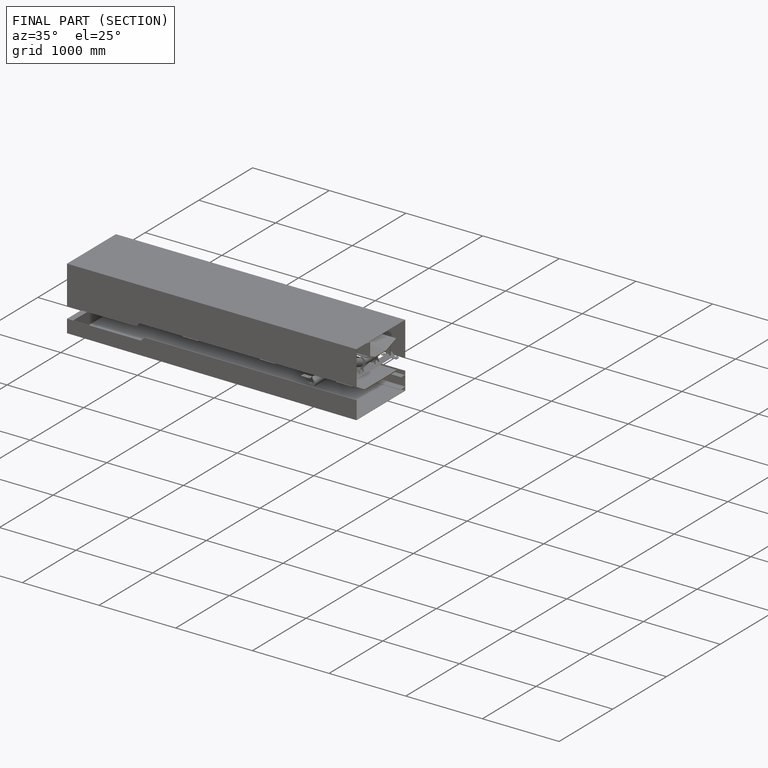
[diagram: finished part — half-section view (interior)]
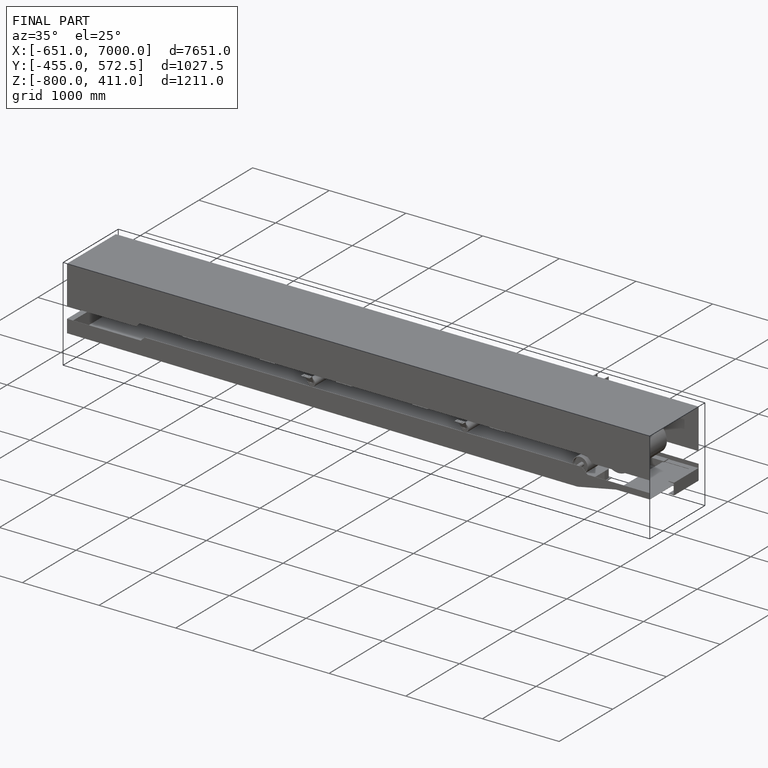
[diagram: finished part — iso view with bounding-box wireframe]
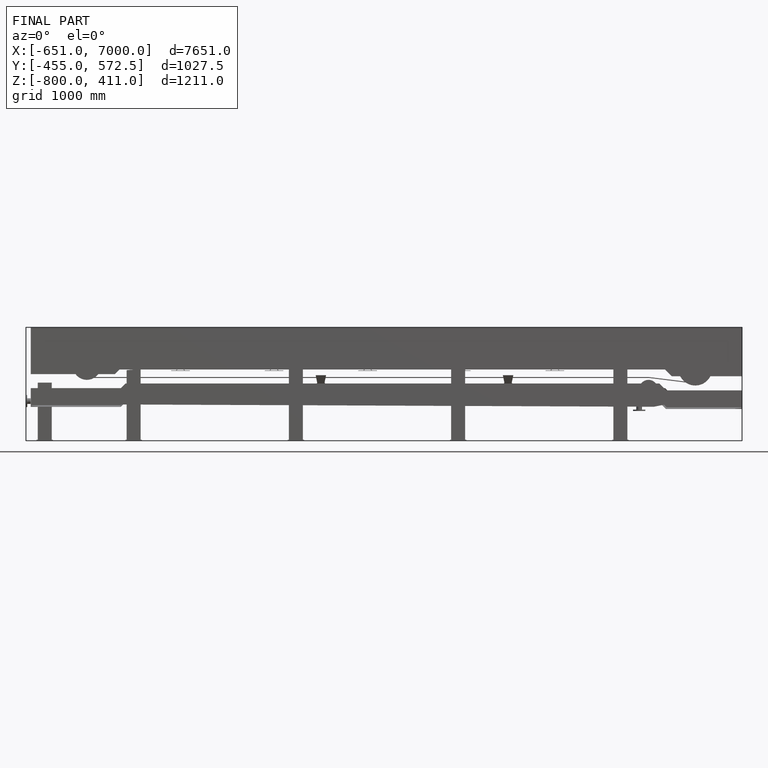
[diagram: finished part — front view with bounding-box wireframe]
